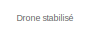
[diagram: root canvas - part 1/4, top center region]
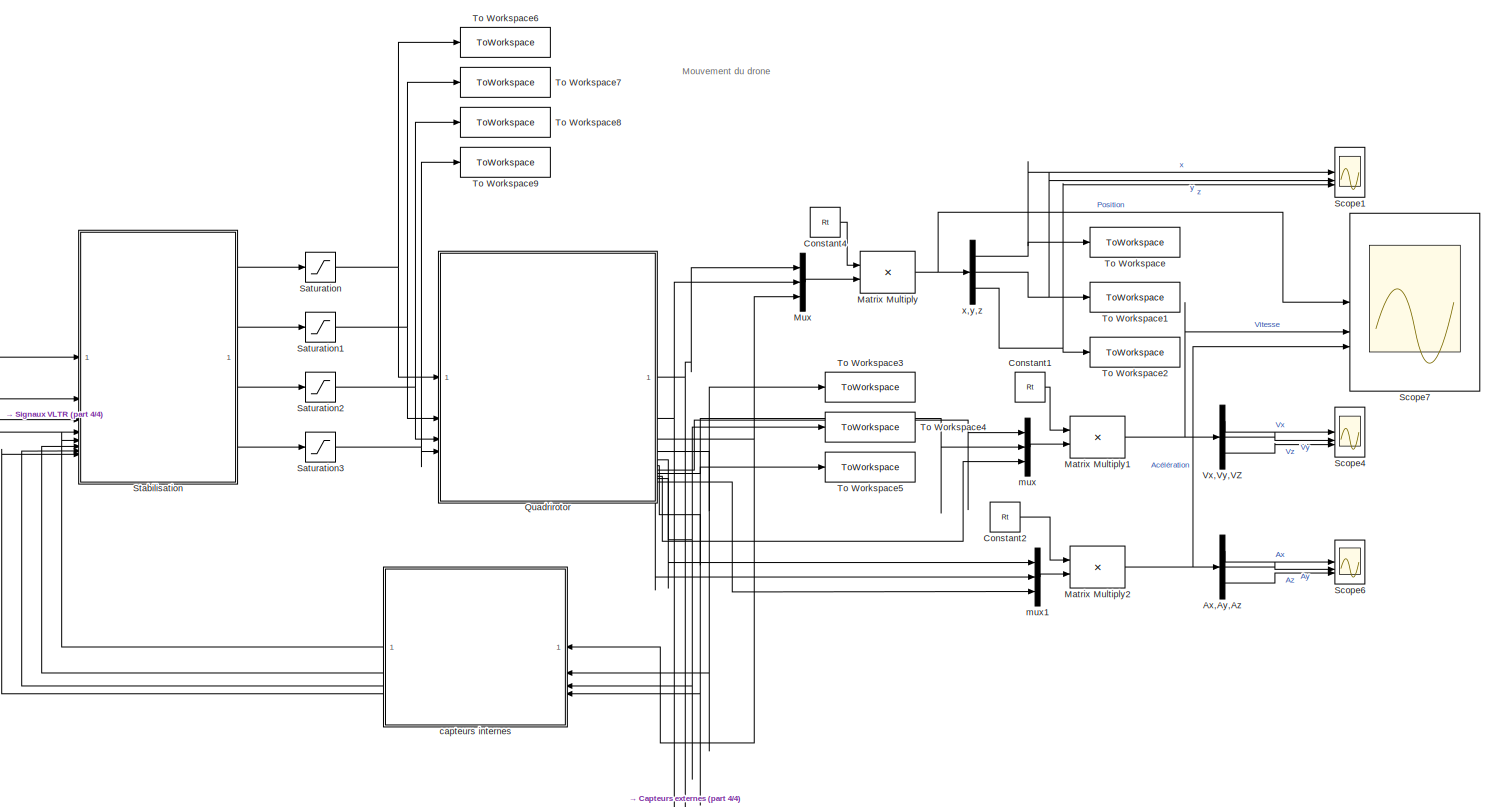
[diagram: root canvas - part 2/4, middle right region]
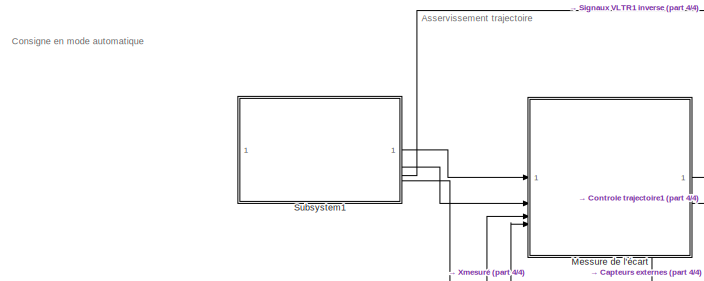
[diagram: root canvas - part 3/4, top left region]
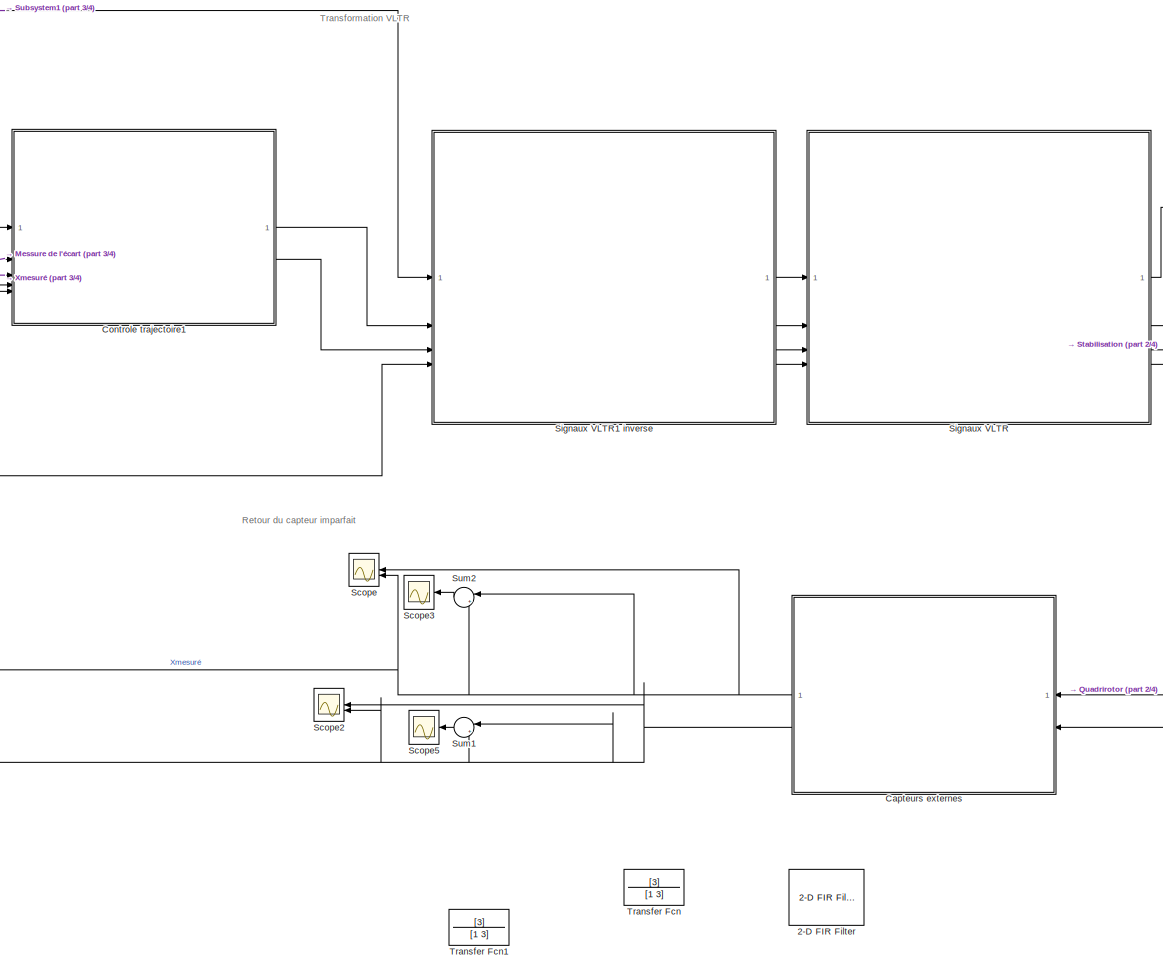
[diagram: root canvas - part 4/4, center side, full height]
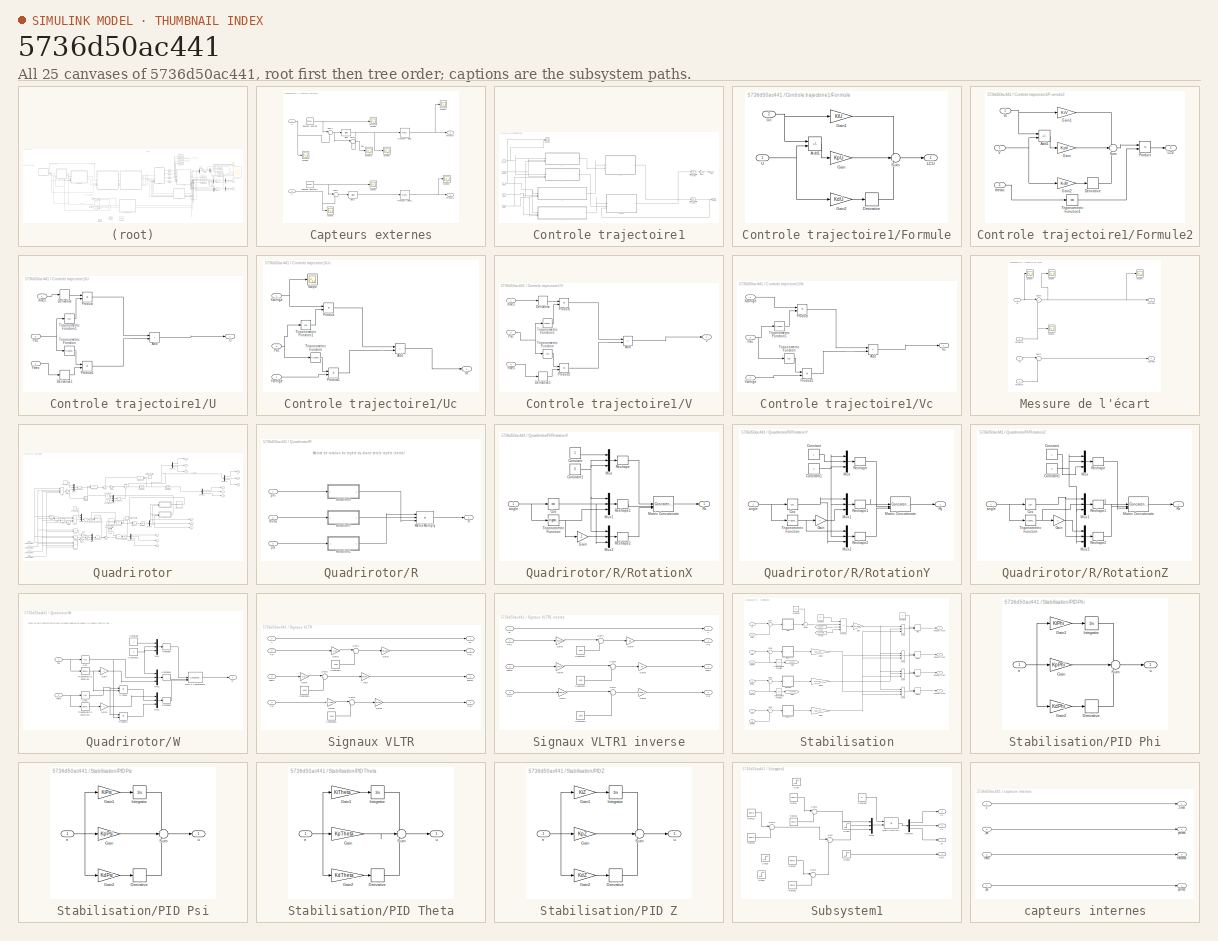
[diagram: thumbnail index - all 25 canvases of the model, root first then tree order]
MODEL slx_5736d50ac441
KIND model
CONFIG AbsTol = auto
CONFIG EnableMultiTasking = off
CONFIG FixedStep = Tech
CONFIG MaxStep = auto
CONFIG MinStep = auto
CONFIG RelTol = 1e-3
CONFIG SampleTimeConstraint = Unconstrained
CONFIG SolverName = ode4
CONFIG StartTime = 0.0
CONFIG StopTime = Tfinsim
BLOCK [Reference] 2-D FIR Filter  REF=visionfilter/2-D FIR Filter
  NameLocation = top
  SourceBlock = visionfilter/2-D FIR Filter
  SourceType = 2-D FIR Filter
BLOCK [Demux] Ax,Ay,Az
  Outputs = 3
BLOCK [SubSystem] Capteurs externes
  NameLocation = top
BLOCK [Bias] Capteurs externes/Bias
  Bias = Biais
  SaturateOnIntegerOverflow = off
BLOCK [Bias] Capteurs externes/Bias1
  Bias = Biais
  SaturateOnIntegerOverflow = off
BLOCK [RandomNumber] Capteurs externes/Random Number
  SampleTime = 0.07
  Variance = Bruit
BLOCK [RandomNumber] Capteurs externes/Random Number1
  SampleTime = 0.07
  Variance = Bruit
BLOCK [Scope] Capteurs externes/Scope1
  Floating = off
  NumInputPorts = 1
  ScopeSpecificationString = Simulink.scopes.TimeScopeBlockCfg('CurrentConfiguration', extmgr.ConfigurationSet(extmgr.Configuration('Core','General UI',true),extmgr.Configuration('Core','Source UI',true),extmgr.Configuration('Sources','WiredSimulink',true,'DataLoggingVariableName','ScopeData1'),extmgr.Configuration('Visuals','Time Domain',true,'SerializedDisplays',{struct('MinYLimReal','-1.14876','MaxYLimReal','1.25443','YLab...<+1502ch>
BLOCK [Scope] Capteurs externes/Scope10
  Floating = off
  NumInputPorts = 1
  ScopeSpecificationString = Simulink.scopes.TimeScopeBlockCfg('CurrentConfiguration', extmgr.ConfigurationSet(extmgr.Configuration('Core','General UI',true,'FigureColor',[1 1 1]),extmgr.Configuration('Core','Source UI',true),extmgr.Configuration('Sources','WiredSimulink',true,'DataLoggingVariableName','ScopeData2'),extmgr.Configuration('Visuals','Time Domain',true,'SerializedDisplays',{struct('MinYLimReal','-0.02400000000000...<+1709ch>
BLOCK [Scope] Capteurs externes/Scope2
  Floating = off
  NumInputPorts = 1
  ScopeSpecificationString = Simulink.scopes.TimeScopeBlockCfg('CurrentConfiguration', extmgr.ConfigurationSet(extmgr.Configuration('Core','General UI',true),extmgr.Configuration('Core','Source UI',true),extmgr.Configuration('Sources','WiredSimulink',true,'DataLoggingVariableName','ScopeData3'),extmgr.Configuration('Visuals','Time Domain',true,'SerializedDisplays',{struct('MinYLimReal','-0.12614','MaxYLimReal','1.13409','YLab...<+1545ch>
BLOCK [Scope] Capteurs externes/Scope3
  Floating = off
  NumInputPorts = 1
  ScopeSpecificationString = Simulink.scopes.TimeScopeBlockCfg('CurrentConfiguration', extmgr.ConfigurationSet(extmgr.Configuration('Core','General UI',true,'FigureColor',[1 1 1]),extmgr.Configuration('Core','Source UI',true),extmgr.Configuration('Sources','WiredSimulink',true,'DataLoggingVariableName','ScopeData4'),extmgr.Configuration('Visuals','Time Domain',true,'SerializedDisplays',{struct('MinYLimReal','-0.16246','MaxYLi...<+1840ch>
BLOCK [Scope] Capteurs externes/Scope4
  Floating = off
  NumInputPorts = 1
  ScopeSpecificationString = Simulink.scopes.TimeScopeBlockCfg('CurrentConfiguration', extmgr.ConfigurationSet(extmgr.Configuration('Core','General UI',true),extmgr.Configuration('Core','Source UI',true),extmgr.Configuration('Sources','WiredSimulink',true,'DataLoggingVariableName','ScopeData5'),extmgr.Configuration('Visuals','Time Domain',true,'SerializedDisplays',{struct('MinYLimReal','-0.13292','MaxYLimReal','1.19626','YLab...<+1545ch>
BLOCK [Scope] Capteurs externes/Scope5
  Floating = off
  NumInputPorts = 1
  ScopeSpecificationString = Simulink.scopes.TimeScopeBlockCfg('CurrentConfiguration', extmgr.ConfigurationSet(extmgr.Configuration('Core','General UI',true),extmgr.Configuration('Core','Source UI',true),extmgr.Configuration('Sources','WiredSimulink',true,'DataLoggingVariableName','ScopeData6'),extmgr.Configuration('Visuals','Time Domain',true,'SerializedDisplays',{struct('MinYLimReal','-26433.93958','MaxYLimReal','237901.780...<+1526ch>
BLOCK [Scope] Capteurs externes/Scope6
  Floating = off
  NumInputPorts = 1
  ScopeSpecificationString = Simulink.scopes.TimeScopeBlockCfg('CurrentConfiguration', extmgr.ConfigurationSet(extmgr.Configuration('Core','General UI',true),extmgr.Configuration('Core','Source UI',true),extmgr.Configuration('Sources','WiredSimulink',true,'DataLoggingVariableName','ScopeData7'),extmgr.Configuration('Visuals','Time Domain',true,'SerializedDisplays',{struct('MinYLimReal','-0.13792','MaxYLimReal','1.12136','YLab...<+1491ch>
BLOCK [Scope] Capteurs externes/Scope9
  Floating = off
  NumInputPorts = 1
  ScopeSpecificationString = Simulink.scopes.TimeScopeBlockCfg('CurrentConfiguration', extmgr.ConfigurationSet(extmgr.Configuration('Core','General UI',true),extmgr.Configuration('Core','Source UI',true),extmgr.Configuration('Sources','WiredSimulink',true,'DataLoggingVariableName','ScopeData8'),extmgr.Configuration('Visuals','Time Domain',true,'SerializedDisplays',{struct('MinYLimReal','-0.45863','MaxYLimReal','2.27318','YLab...<+1498ch>
BLOCK [Sum] Capteurs externes/Sum1
  Inputs = |++
BLOCK [Sum] Capteurs externes/Sum2
  Inputs = |++
BLOCK [Sum] Capteurs externes/Sum3
  Inputs = |+-
BLOCK [TransportDelay] Capteurs externes/Transport Delay
  DelayTime = retard
BLOCK [TransportDelay] Capteurs externes/Transport Delay1
  DelayTime = retard
BLOCK [Outport] Capteurs externes/Xmesuré
BLOCK [Outport] Capteurs externes/Ymesuré
  Port = 2
BLOCK [Inport] Capteurs externes/x
BLOCK [Inport] Capteurs externes/y
  Port = 2
BLOCK [Constant] Constant1
  Value = Rt
BLOCK [Constant] Constant2
  Value = Rt
BLOCK [Constant] Constant4
  Value = Rt
BLOCK [SubSystem] Controle trajectoire1
BLOCK [SubSystem] Controle trajectoire1/Formule
BLOCK [Sum] Controle trajectoire1/Formule/Add1
  IconShape = rectangular
  Inputs = +-
BLOCK [Derivative] Controle trajectoire1/Formule/Derivative
BLOCK [Gain] Controle trajectoire1/Formule/Gain
  Gain = KpU
BLOCK [Gain] Controle trajectoire1/Formule/Gain1
  Gain = KiU
BLOCK [Gain] Controle trajectoire1/Formule/Gain2
  Gain = KdU
BLOCK [Outport] Controle trajectoire1/Formule/LCU
BLOCK [Sum] Controle trajectoire1/Formule/Sum
  Inputs = +|+-
BLOCK [Inport] Controle trajectoire1/Formule/U
BLOCK [Inport] Controle trajectoire1/Formule/Uc
  Port = 2
BLOCK [SubSystem] Controle trajectoire1/Formule2
BLOCK [Sum] Controle trajectoire1/Formule2/Add1
  IconShape = rectangular
  Inputs = +-
BLOCK [Derivative] Controle trajectoire1/Formule2/Derivative
BLOCK [Gain] Controle trajectoire1/Formule2/Gain
  Gain = KpV
BLOCK [Gain] Controle trajectoire1/Formule2/Gain1
  Gain = KiV
BLOCK [Gain] Controle trajectoire1/Formule2/Gain2
  Gain = KdV
BLOCK [Outport] Controle trajectoire1/Formule2/LCV
BLOCK [Product] Controle trajectoire1/Formule2/Product
BLOCK [Sum] Controle trajectoire1/Formule2/Sum
  Inputs = +|+-
BLOCK [Trigonometry] Controle trajectoire1/Formule2/Trigonometric Function1
  Operator = cos
BLOCK [Inport] Controle trajectoire1/Formule2/V
BLOCK [Inport] Controle trajectoire1/Formule2/Vc
  Port = 2
BLOCK [Inport] Controle trajectoire1/Formule2/thetac
  Port = 3
BLOCK [Gain] Controle trajectoire1/Gain1
  Gain = -1
BLOCK [Outport] Controle trajectoire1/Phic
BLOCK [Inport] Controle trajectoire1/Psic
  Port = 5
BLOCK [Scope] Controle trajectoire1/Scope4
  Floating = off
  NumInputPorts = 2
  ScopeSpecificationString = Simulink.scopes.TimeScopeBlockCfg('CurrentConfiguration', extmgr.ConfigurationSet(extmgr.Configuration('Core','General UI',true),extmgr.Configuration('Core','Source UI',true),extmgr.Configuration('Sources','WiredSimulink',true,'DataLoggingVariableName','ScopeData3'),extmgr.Configuration('Visuals','Time Domain',true,'SerializedDisplays',{struct('MinYLimReal','-48.78354','MaxYLimReal','55.85461','YL...<+1553ch>
BLOCK [Outport] Controle trajectoire1/Thetac
  Port = 2
BLOCK [Trigonometry] Controle trajectoire1/Trigonometric Function
  Operator = atan
BLOCK [Trigonometry] Controle trajectoire1/Trigonometric Function1
  Operator = atan
BLOCK [SubSystem] Controle trajectoire1/U
BLOCK [Sum] Controle trajectoire1/U/Add
  IconShape = rectangular
BLOCK [Derivative] Controle trajectoire1/U/Derivative
BLOCK [Derivative] Controle trajectoire1/U/Derivative1
BLOCK [Product] Controle trajectoire1/U/Product
BLOCK [Product] Controle trajectoire1/U/Product1
BLOCK [Inport] Controle trajectoire1/U/Psic
  Port = 3
BLOCK [Trigonometry] Controle trajectoire1/U/Trigonometric Function
BLOCK [Trigonometry] Controle trajectoire1/U/Trigonometric Function1
  Operator = cos
BLOCK [Outport] Controle trajectoire1/U/U
BLOCK [Inport] Controle trajectoire1/U/Xmes
BLOCK [Inport] Controle trajectoire1/U/Ymes
  Port = 2
BLOCK [SubSystem] Controle trajectoire1/Uc
BLOCK [Sum] Controle trajectoire1/Uc/Add
  IconShape = rectangular
BLOCK [Product] Controle trajectoire1/Uc/Product
BLOCK [Product] Controle trajectoire1/Uc/Product1
BLOCK [Inport] Controle trajectoire1/Uc/Psic
  Port = 3
BLOCK [Scope] Controle trajectoire1/Uc/Scope
  Floating = off
  NumInputPorts = 1
  ScopeSpecificationString = Simulink.scopes.TimeScopeBlockCfg('CurrentConfiguration', extmgr.ConfigurationSet(extmgr.Configuration('Core','General UI',true),extmgr.Configuration('Core','Source UI',true),extmgr.Configuration('Sources','WiredSimulink',true,'DataLoggingVariableName','ScopeData1'),extmgr.Configuration('Visuals','Time Domain',true,'SerializedDisplays',{struct('MinYLimReal','-0.14566','MaxYLimReal','1.13217','YLab...<+1498ch>
BLOCK [Trigonometry] Controle trajectoire1/Uc/Trigonometric Function
BLOCK [Trigonometry] Controle trajectoire1/Uc/Trigonometric Function1
  Operator = cos
BLOCK [Outport] Controle trajectoire1/Uc/Uc
BLOCK [Inport] Controle trajectoire1/Uc/Xcorrigé
BLOCK [Inport] Controle trajectoire1/Uc/Ycorrigé
  Port = 2
BLOCK [SubSystem] Controle trajectoire1/V
BLOCK [Sum] Controle trajectoire1/V/Add
  IconShape = rectangular
  Inputs = -+
BLOCK [Derivative] Controle trajectoire1/V/Derivative
BLOCK [Derivative] Controle trajectoire1/V/Derivative1
BLOCK [Product] Controle trajectoire1/V/Product
BLOCK [Product] Controle trajectoire1/V/Product1
BLOCK [Inport] Controle trajectoire1/V/Psic
  Port = 3
BLOCK [Trigonometry] Controle trajectoire1/V/Trigonometric Function
  Operator = cos
BLOCK [Trigonometry] Controle trajectoire1/V/Trigonometric Function1
BLOCK [Outport] Controle trajectoire1/V/V
BLOCK [Inport] Controle trajectoire1/V/Xmes
BLOCK [Inport] Controle trajectoire1/V/Ymes
  Port = 2
BLOCK [SubSystem] Controle trajectoire1/Vc
BLOCK [Sum] Controle trajectoire1/Vc/Add
  IconShape = rectangular
  Inputs = -+
BLOCK [Product] Controle trajectoire1/Vc/Product
BLOCK [Product] Controle trajectoire1/Vc/Product1
BLOCK [Inport] Controle trajectoire1/Vc/Psic
  Port = 3
BLOCK [Trigonometry] Controle trajectoire1/Vc/Trigonometric Function
  Operator = cos
BLOCK [Trigonometry] Controle trajectoire1/Vc/Trigonometric Function1
BLOCK [Outport] Controle trajectoire1/Vc/Vc
BLOCK [Inport] Controle trajectoire1/Vc/Xcorrigé
BLOCK [Inport] Controle trajectoire1/Vc/Ycorrigé
  Port = 2
BLOCK [Inport] Controle trajectoire1/Xecart
BLOCK [Inport] Controle trajectoire1/Xmes
  Port = 3
BLOCK [Inport] Controle trajectoire1/Yecart
  Port = 2
BLOCK [Inport] Controle trajectoire1/Ymes
  Port = 4
BLOCK [Product] Matrix Multiply
  Multiplication = Matrix(*)
BLOCK [Product] Matrix Multiply1
  Multiplication = Matrix(*)
BLOCK [Product] Matrix Multiply2
  Multiplication = Matrix(*)
BLOCK [SubSystem] Messure de l'écart
BLOCK [Scope] Messure de l'écart/Scope
  Floating = off
  NumInputPorts = 1
  ScopeSpecificationString = Simulink.scopes.TimeScopeBlockCfg('CurrentConfiguration', extmgr.ConfigurationSet(extmgr.Configuration('Core','General UI',true),extmgr.Configuration('Core','Source UI',true),extmgr.Configuration('Sources','WiredSimulink',true,'DataLoggingVariableName','ScopeData1'),extmgr.Configuration('Visuals','Time Domain',true,'SerializedDisplays',{struct('MinYLimReal','-264.52509','MaxYLimReal','51.03557','Y...<+1506ch>
BLOCK [Scope] Messure de l'écart/Scope1
  Floating = off
  NumInputPorts = 1
  ScopeSpecificationString = Simulink.scopes.TimeScopeBlockCfg('CurrentConfiguration', extmgr.ConfigurationSet(extmgr.Configuration('Core','General UI',true),extmgr.Configuration('Core','Source UI',true),extmgr.Configuration('Sources','WiredSimulink',true,'DataLoggingVariableName','ScopeData2'),extmgr.Configuration('Visuals','Time Domain',true,'SerializedDisplays',{struct('MinYLimReal','-0.29025','MaxYLimReal','2.61229','YLab...<+1493ch>
BLOCK [Scope] Messure de l'écart/Scope2
  Floating = off
  NumInputPorts = 1
  ScopeSpecificationString = Simulink.scopes.TimeScopeBlockCfg('CurrentConfiguration', extmgr.ConfigurationSet(extmgr.Configuration('Core','General UI',true),extmgr.Configuration('Core','Source UI',true),extmgr.Configuration('Sources','WiredSimulink',true,'DataLoggingVariableName','ScopeData3'),extmgr.Configuration('Visuals','Time Domain',true,'SerializedDisplays',{struct('MinYLimReal','-0.125','MaxYLimReal','1.125','YLabelRe...<+1480ch>
BLOCK [Scope] Messure de l'écart/Scope3
  Floating = off
  NumInputPorts = 1
  ScopeSpecificationString = Simulink.scopes.TimeScopeBlockCfg('CurrentConfiguration', extmgr.ConfigurationSet(extmgr.Configuration('Core','General UI',true),extmgr.Configuration('Core','Source UI',true),extmgr.Configuration('Sources','WiredSimulink',true,'DataLoggingVariableName','ScopeData4'),extmgr.Configuration('Visuals','Time Domain',true,'SerializedDisplays',{struct('MinYLimReal','-50.03557','MaxYLimReal','265.52509','Y...<+1507ch>
BLOCK [Sum] Messure de l'écart/Sum4
  Inputs = |+-
BLOCK [Sum] Messure de l'écart/Sum5
  Inputs = |+-
BLOCK [Inport] Messure de l'écart/Xc
BLOCK [Outport] Messure de l'écart/Xcorrigé
BLOCK [Inport] Messure de l'écart/Xmesuré
  Port = 3
BLOCK [Inport] Messure de l'écart/Yc
  Port = 2
BLOCK [Outport] Messure de l'écart/Ycorrigé
  Port = 2
BLOCK [Inport] Messure de l'écart/Ymesuré
  Port = 4
BLOCK [Mux] Mux
  DisplayOption = bar
  Inputs = 3
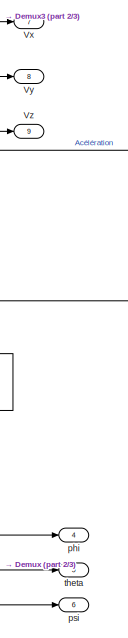
[diagram: Quadrirotor - part 1/3, middle right region]
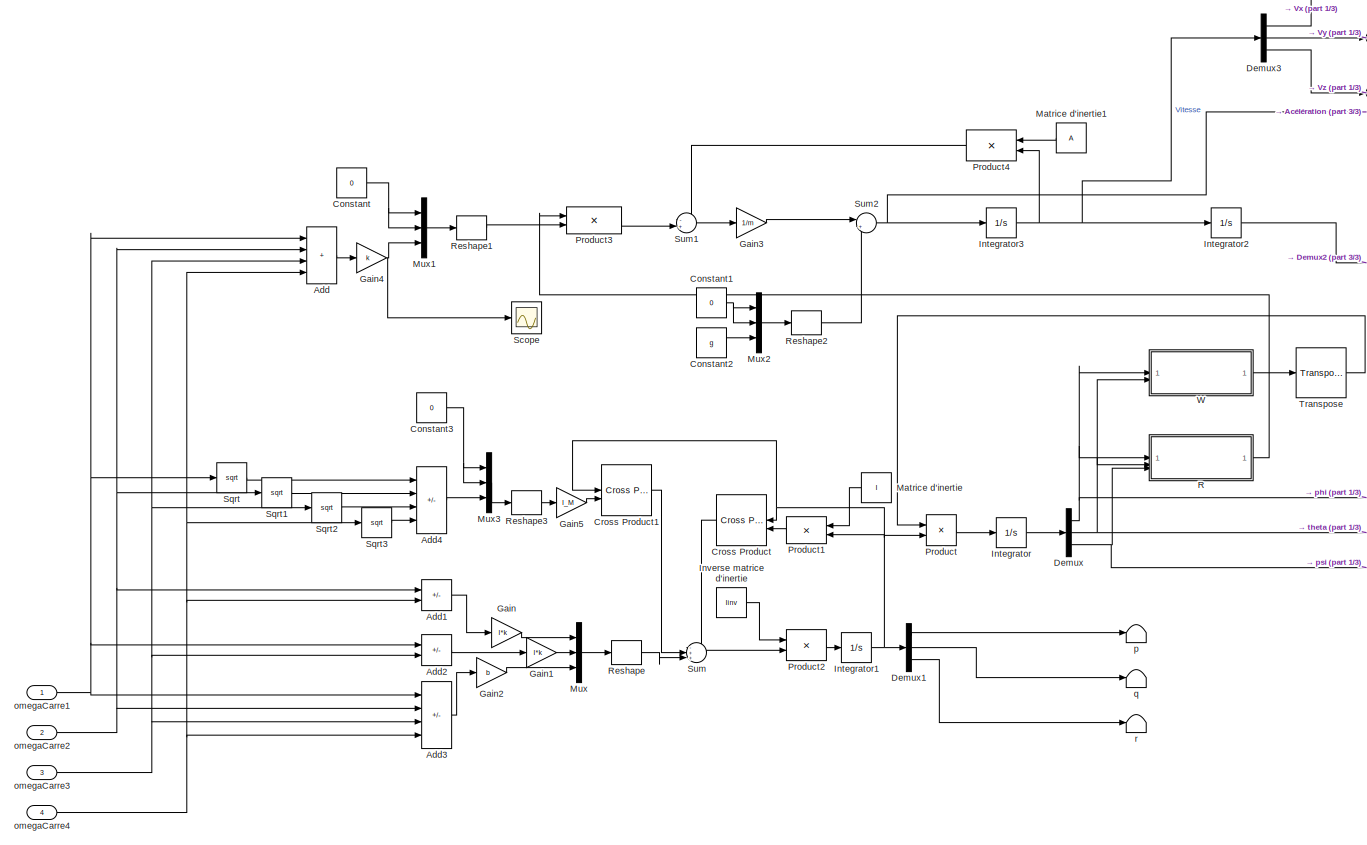
[diagram: Quadrirotor - part 2/3, most of the canvas]
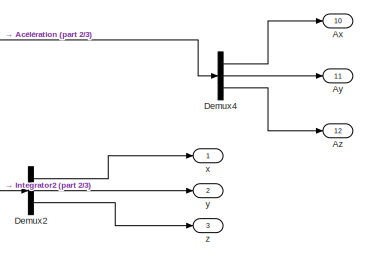
[diagram: Quadrirotor - part 3/3, top right region]
BLOCK [SubSystem] Quadrirotor
BLOCK [Sum] Quadrirotor/Add
  IconShape = rectangular
  Inputs = ++++
BLOCK [Sum] Quadrirotor/Add1
  IconShape = rectangular
  Inputs = -+
BLOCK [Sum] Quadrirotor/Add2
  IconShape = rectangular
  Inputs = -+
BLOCK [Sum] Quadrirotor/Add3
  IconShape = rectangular
  Inputs = -+-+
BLOCK [Sum] Quadrirotor/Add4
  IconShape = rectangular
  Inputs = +-+-
BLOCK [Outport] Quadrirotor/Ax
  Port = 10
BLOCK [Outport] Quadrirotor/Ay
  Port = 11
BLOCK [Outport] Quadrirotor/Az
  Port = 12
BLOCK [Constant] Quadrirotor/Constant
  Value = 0
BLOCK [Constant] Quadrirotor/Constant1
  Value = 0
BLOCK [Constant] Quadrirotor/Constant2
  Value = g
BLOCK [Constant] Quadrirotor/Constant3
  Value = 0
BLOCK [Reference] Quadrirotor/Cross Product  REF=matrix_library/Cross Product
  LibrarySourceBlock = simulink/Matrix\nOperations/Cross Product
  NameLocation = top
  SourceBlock = matrix_library/Cross Product
  SourceType = CrossProduct
BLOCK [Reference] Quadrirotor/Cross Product1  REF=matrix_library/Cross Product
  LibrarySourceBlock = simulink/Matrix\nOperations/Cross Product
  SourceBlock = matrix_library/Cross Product
  SourceType = CrossProduct
BLOCK [Demux] Quadrirotor/Demux
  Outputs = 3
BLOCK [Demux] Quadrirotor/Demux1
  Outputs = 3
BLOCK [Demux] Quadrirotor/Demux2
  Outputs = 3
BLOCK [Demux] Quadrirotor/Demux3
  Outputs = 3
BLOCK [Demux] Quadrirotor/Demux4
  Outputs = 3
BLOCK [Gain] Quadrirotor/Gain
  Gain = l*k
BLOCK [Gain] Quadrirotor/Gain1
  Gain = l*k
BLOCK [Gain] Quadrirotor/Gain2
  Gain = b
BLOCK [Gain] Quadrirotor/Gain3
  Gain = 1/m
BLOCK [Gain] Quadrirotor/Gain4
  Gain = k
BLOCK [Gain] Quadrirotor/Gain5
  Gain = I_M
BLOCK [Integrator] Quadrirotor/Integrator
BLOCK [Integrator] Quadrirotor/Integrator1
BLOCK [Integrator] Quadrirotor/Integrator2
BLOCK [Integrator] Quadrirotor/Integrator3
BLOCK [Constant] Quadrirotor/Inverse matrice d'inertie
  Value = Iinv
BLOCK [Constant] Quadrirotor/Matrice d'inertie
  NameLocation = top
  Value = I
BLOCK [Constant] Quadrirotor/Matrice d'inertie1
  NameLocation = top
  Value = A
BLOCK [Mux] Quadrirotor/Mux
  DisplayOption = bar
  Inputs = 3
BLOCK [Mux] Quadrirotor/Mux1
  DisplayOption = bar
  Inputs = 3
BLOCK [Mux] Quadrirotor/Mux2
  DisplayOption = bar
  Inputs = 3
BLOCK [Mux] Quadrirotor/Mux3
  DisplayOption = bar
  Inputs = 3
BLOCK [Product] Quadrirotor/Product
  Multiplication = Matrix(*)
BLOCK [Product] Quadrirotor/Product1
  Multiplication = Matrix(*)
  NameLocation = top
BLOCK [Product] Quadrirotor/Product2
  Multiplication = Matrix(*)
BLOCK [Product] Quadrirotor/Product3
  Multiplication = Matrix(*)
BLOCK [Product] Quadrirotor/Product4
  Multiplication = Matrix(*)
  NameLocation = top
BLOCK [SubSystem] Quadrirotor/R
BLOCK [Product] Quadrirotor/R/Matrix Multiply
  Inputs = ***
  Multiplication = Matrix(*)
BLOCK [Outport] Quadrirotor/R/R
BLOCK [SubSystem] Quadrirotor/R/RotationX
BLOCK [Constant] Quadrirotor/R/RotationX/Constant
BLOCK [Constant] Quadrirotor/R/RotationX/Constant1
  Value = 0
BLOCK [Trigonometry] Quadrirotor/R/RotationX/Cos
  Operator = cos
BLOCK [Gain] Quadrirotor/R/RotationX/Gain
  Gain = -1
BLOCK [Concatenate] Quadrirotor/R/RotationX/Matrix Concatenate
  ConcatenateDimension = 2
  Mode = Multidimensional array
  NumInputs = 3
BLOCK [Mux] Quadrirotor/R/RotationX/Mux
  DisplayOption = bar
  Inputs = 3
BLOCK [Mux] Quadrirotor/R/RotationX/Mux1
  DisplayOption = bar
  Inputs = 3
BLOCK [Mux] Quadrirotor/R/RotationX/Mux2
  DisplayOption = bar
  Inputs = 3
BLOCK [Reshape] Quadrirotor/R/RotationX/Reshape
  OutputDimensionality = Column vector (2-D)
BLOCK [Reshape] Quadrirotor/R/RotationX/Reshape1
  OutputDimensionality = Column vector (2-D)
BLOCK [Reshape] Quadrirotor/R/RotationX/Reshape2
  OutputDimensionality = Column vector (2-D)
BLOCK [Outport] Quadrirotor/R/RotationX/Rx
BLOCK [Trigonometry] Quadrirotor/R/RotationX/Trigonometric Function
BLOCK [Inport] Quadrirotor/R/RotationX/angle
BLOCK [SubSystem] Quadrirotor/R/RotationY
BLOCK [Constant] Quadrirotor/R/RotationY/Constant
BLOCK [Constant] Quadrirotor/R/RotationY/Constant1
  Value = 0
BLOCK [Trigonometry] Quadrirotor/R/RotationY/Cos
  Operator = cos
BLOCK [Gain] Quadrirotor/R/RotationY/Gain
  Gain = -1
BLOCK [Concatenate] Quadrirotor/R/RotationY/Matrix Concatenate
  ConcatenateDimension = 2
  Mode = Multidimensional array
  NumInputs = 3
BLOCK [Mux] Quadrirotor/R/RotationY/Mux
  DisplayOption = bar
  Inputs = 3
BLOCK [Mux] Quadrirotor/R/RotationY/Mux1
  DisplayOption = bar
  Inputs = 3
BLOCK [Mux] Quadrirotor/R/RotationY/Mux2
  DisplayOption = bar
  Inputs = 3
BLOCK [Reshape] Quadrirotor/R/RotationY/Reshape
  OutputDimensionality = Column vector (2-D)
BLOCK [Reshape] Quadrirotor/R/RotationY/Reshape1
  OutputDimensionality = Column vector (2-D)
BLOCK [Reshape] Quadrirotor/R/RotationY/Reshape2
  OutputDimensionality = Column vector (2-D)
BLOCK [Outport] Quadrirotor/R/RotationY/Ry
BLOCK [Trigonometry] Quadrirotor/R/RotationY/Trigonometric Function
BLOCK [Inport] Quadrirotor/R/RotationY/angle
BLOCK [SubSystem] Quadrirotor/R/RotationZ
BLOCK [Constant] Quadrirotor/R/RotationZ/Constant
BLOCK [Constant] Quadrirotor/R/RotationZ/Constant1
  Value = 0
BLOCK [Trigonometry] Quadrirotor/R/RotationZ/Cos
  Operator = cos
BLOCK [Gain] Quadrirotor/R/RotationZ/Gain
  Gain = -1
BLOCK [Concatenate] Quadrirotor/R/RotationZ/Matrix Concatenate
  ConcatenateDimension = 2
  Mode = Multidimensional array
  NumInputs = 3
BLOCK [Mux] Quadrirotor/R/RotationZ/Mux
  DisplayOption = bar
  Inputs = 3
BLOCK [Mux] Quadrirotor/R/RotationZ/Mux1
  DisplayOption = bar
  Inputs = 3
BLOCK [Mux] Quadrirotor/R/RotationZ/Mux2
  DisplayOption = bar
  Inputs = 3
BLOCK [Reshape] Quadrirotor/R/RotationZ/Reshape
  OutputDimensionality = Column vector (2-D)
BLOCK [Reshape] Quadrirotor/R/RotationZ/Reshape1
  OutputDimensionality = Column vector (2-D)
BLOCK [Reshape] Quadrirotor/R/RotationZ/Reshape2
  OutputDimensionality = Column vector (2-D)
BLOCK [Outport] Quadrirotor/R/RotationZ/Rz
BLOCK [Trigonometry] Quadrirotor/R/RotationZ/Trigonometric Function
BLOCK [Inport] Quadrirotor/R/RotationZ/angle
BLOCK [Inport] Quadrirotor/R/phi
BLOCK [Inport] Quadrirotor/R/psi
  Port = 3
BLOCK [Inport] Quadrirotor/R/theta
  Port = 2
BLOCK [Reshape] Quadrirotor/Reshape
  OutputDimensionality = Column vector (2-D)
BLOCK [Reshape] Quadrirotor/Reshape1
  OutputDimensionality = Column vector (2-D)
BLOCK [Reshape] Quadrirotor/Reshape2
  OutputDimensionality = Column vector (2-D)
BLOCK [Reshape] Quadrirotor/Reshape3
  OutputDimensionality = Column vector (2-D)
BLOCK [Scope] Quadrirotor/Scope
  Floating = off
  NumInputPorts = 1
  ScopeSpecificationString = Simulink.scopes.TimeScopeBlockCfg('CurrentConfiguration', extmgr.ConfigurationSet(extmgr.Configuration('Core','General UI',true),extmgr.Configuration('Core','Source UI',true),extmgr.Configuration('Sources','WiredSimulink',true,'DataLoggingVariableName','ScopeData1'),extmgr.Configuration('Visuals','Time Domain',true,'SerializedDisplays',{struct('MinYLimReal','14.715','MaxYLimReal','24.525','YLabelR...<+1488ch>
BLOCK [Sqrt] Quadrirotor/Sqrt
BLOCK [Sqrt] Quadrirotor/Sqrt1
BLOCK [Sqrt] Quadrirotor/Sqrt2
BLOCK [Sqrt] Quadrirotor/Sqrt3
BLOCK [Sum] Quadrirotor/Sum
  Inputs = -++|
BLOCK [Sum] Quadrirotor/Sum1
  Inputs = -+|
BLOCK [Sum] Quadrirotor/Sum2
  Inputs = |+-
BLOCK [Reference] Quadrirotor/Transpose  REF=matrix_library/Transpose
  LibrarySourceBlock = simulink/Matrix\nOperations/Transpose
  SourceBlock = matrix_library/Transpose
  SourceType = Transpose
BLOCK [Outport] Quadrirotor/Vx
  Port = 7
BLOCK [Outport] Quadrirotor/Vy
  Port = 8
BLOCK [Outport] Quadrirotor/Vz
  Port = 9
BLOCK [SubSystem] Quadrirotor/W
BLOCK [Constant] Quadrirotor/W/Constant
BLOCK [Constant] Quadrirotor/W/Constant1
  Value = 0
BLOCK [Trigonometry] Quadrirotor/W/Cos
  Operator = cos
BLOCK [Trigonometry] Quadrirotor/W/Cos1
  Operator = cos
BLOCK [Gain] Quadrirotor/W/Gain
  Gain = -1
BLOCK [Gain] Quadrirotor/W/Gain1
  Gain = -1
BLOCK [Concatenate] Quadrirotor/W/Matrix Concatenate
  ConcatenateDimension = 2
  Mode = Multidimensional array
  NumInputs = 3
BLOCK [Mux] Quadrirotor/W/Mux
  DisplayOption = bar
  Inputs = 3
BLOCK [Mux] Quadrirotor/W/Mux1
  DisplayOption = bar
  Inputs = 3
BLOCK [Mux] Quadrirotor/W/Mux2
  DisplayOption = bar
  Inputs = 3
BLOCK [Product] Quadrirotor/W/Product
BLOCK [Product] Quadrirotor/W/Product1
BLOCK [Reshape] Quadrirotor/W/Reshape
  OutputDimensionality = Column vector (2-D)
BLOCK [Reshape] Quadrirotor/W/Reshape1
  OutputDimensionality = Column vector (2-D)
BLOCK [Reshape] Quadrirotor/W/Reshape2
  OutputDimensionality = Column vector (2-D)
BLOCK [Trigonometry] Quadrirotor/W/Trigonometric Function
BLOCK [Trigonometry] Quadrirotor/W/Trigonometric Function1
BLOCK [Outport] Quadrirotor/W/W
BLOCK [Inport] Quadrirotor/W/phi
BLOCK [Inport] Quadrirotor/W/theta
  Port = 2
BLOCK [Inport] Quadrirotor/omegaCarre1
  PortDimensions = 1
BLOCK [Inport] Quadrirotor/omegaCarre2
  Port = 2
  PortDimensions = 1
BLOCK [Inport] Quadrirotor/omegaCarre3
  Port = 3
  PortDimensions = 1
BLOCK [Inport] Quadrirotor/omegaCarre4
  Port = 4
  PortDimensions = 1
BLOCK [Terminator] Quadrirotor/p
BLOCK [Outport] Quadrirotor/phi
  Port = 4
BLOCK [Outport] Quadrirotor/psi
  Port = 6
BLOCK [Terminator] Quadrirotor/q
BLOCK [Terminator] Quadrirotor/r
BLOCK [Outport] Quadrirotor/theta
  Port = 5
BLOCK [Outport] Quadrirotor/x
BLOCK [Outport] Quadrirotor/y
  Port = 2
BLOCK [Outport] Quadrirotor/z
  Port = 3
BLOCK [Saturate] Saturation
  LowerLimit = -(10464*2*pi/60)^2
  UpperLimit = (10464*(2*pi)/60)^2
BLOCK [Saturate] Saturation1
  LowerLimit = -(10464*2*pi/60)^2
  UpperLimit = (10464*(2*pi)/60)^2
BLOCK [Saturate] Saturation2
  LowerLimit = -(10464*2*pi/60)^2
  UpperLimit = (10464*(2*pi)/60)^2
BLOCK [Saturate] Saturation3
  LowerLimit = -(10464*2*pi/60)^2
  UpperLimit = (10464*(2*pi)/60)^2
BLOCK [Scope] Scope
  Floating = off
  NameLocation = top
  NumInputPorts = 2
  ScopeSpecificationString = Simulink.scopes.TimeScopeBlockCfg('CurrentConfiguration', extmgr.ConfigurationSet(extmgr.Configuration('Core','General UI',true,'FigureColor',[1 1 1]),extmgr.Configuration('Core','Source UI',true),extmgr.Configuration('Sources','WiredSimulink',true,'DataLoggingVariableName','ScopeData1'),extmgr.Configuration('Visuals','Time Domain',true,'SerializedDisplays',{struct('MinYLimReal','-1.48694','MaxYLi...<+1515ch>
BLOCK [Scope] Scope1
  Floating = off
  NumInputPorts = 3
  ScopeSpecificationString = Simulink.scopes.TimeScopeBlockCfg('CurrentConfiguration', extmgr.ConfigurationSet(extmgr.Configuration('Core','General UI',true,'FigureColor',[1 1 1]),extmgr.Configuration('Core','Source UI',true),extmgr.Configuration('Sources','WiredSimulink',true,'DataLoggingVariableName','ScopeData1'),extmgr.Configuration('Visuals','Time Domain',true,'SerializedDisplays',{struct('MinYLimReal','-3.09899','MaxYLi...<+1570ch>
BLOCK [Scope] Scope2
  Floating = off
  NameLocation = top
  NumInputPorts = 2
  ScopeSpecificationString = Simulink.scopes.TimeScopeBlockCfg('CurrentConfiguration', extmgr.ConfigurationSet(extmgr.Configuration('Core','General UI',true),extmgr.Configuration('Core','Source UI',true),extmgr.Configuration('Sources','WiredSimulink',true,'DataLoggingVariableName','ScopeData3'),extmgr.Configuration('Visuals','Time Domain',true,'SerializedDisplays',{struct('MinYLimReal','-4.08982','MaxYLimReal','0.46659','YLab...<+1550ch>
BLOCK [Scope] Scope3
  Floating = off
  NameLocation = top
  NumInputPorts = 1
  ScopeSpecificationString = Simulink.scopes.TimeScopeBlockCfg('CurrentConfiguration', extmgr.ConfigurationSet(extmgr.Configuration('Core','General UI',true,'FigureColor',[1 1 1]),extmgr.Configuration('Core','Source UI',true),extmgr.Configuration('Sources','WiredSimulink',true,'DataLoggingVariableName','ScopeData5'),extmgr.Configuration('Visuals','Time Domain',true,'SerializedDisplays',{struct('MinYLimReal','-1.27477','MaxYLi...<+1663ch>
BLOCK [Scope] Scope4
  Floating = off
  NumInputPorts = 3
  ScopeSpecificationString = Simulink.scopes.TimeScopeBlockCfg('CurrentConfiguration', extmgr.ConfigurationSet(extmgr.Configuration('Core','General UI',true,'FigureColor',[1 1 1]),extmgr.Configuration('Core','Source UI',true),extmgr.Configuration('Sources','WiredSimulink',true,'DataLoggingVariableName','ScopeData2'),extmgr.Configuration('Visuals','Time Domain',true,'SerializedDisplays',{struct('MinYLimReal','-2.54075','MaxYLi...<+1502ch>
BLOCK [Scope] Scope5
  Floating = off
  NameLocation = top
  NumInputPorts = 1
  ScopeSpecificationString = Simulink.scopes.TimeScopeBlockCfg('CurrentConfiguration', extmgr.ConfigurationSet(extmgr.Configuration('Core','General UI',true),extmgr.Configuration('Core','Source UI',true),extmgr.Configuration('Sources','WiredSimulink',true,'DataLoggingVariableName','ScopeData6'),extmgr.Configuration('Visuals','Time Domain',true,'SerializedDisplays',{struct('MinYLimReal','-0.3159','MaxYLimReal','2.56137','YLabe...<+1547ch>
BLOCK [Scope] Scope6
  Floating = off
  NumInputPorts = 3
  ScopeSpecificationString = Simulink.scopes.TimeScopeBlockCfg('CurrentConfiguration', extmgr.ConfigurationSet(extmgr.Configuration('Core','General UI',true,'FigureColor',[1 1 1]),extmgr.Configuration('Core','Source UI',true),extmgr.Configuration('Sources','WiredSimulink',true,'DataLoggingVariableName','ScopeData3'),extmgr.Configuration('Visuals','Time Domain',true,'SerializedDisplays',{struct('MinYLimReal','-52.39191','MaxYL...<+1514ch>
BLOCK [Scope] Scope7
  Floating = off
  NumInputPorts = 3
  ScopeSpecificationString = Simulink.scopes.TimeScopeBlockCfg('CurrentConfiguration', extmgr.ConfigurationSet(extmgr.Configuration('Core','General UI',true,'FigureColor',[1 1 1]),extmgr.Configuration('Core','Source UI',true),extmgr.Configuration('Sources','WiredSimulink',true,'DataLoggingVariableName','ScopeData4'),extmgr.Configuration('Visuals','Time Domain',true,'SerializedDisplays',{struct('MinYLimReal','-1.92821','MaxYLi...<+3022ch>
BLOCK [SubSystem] Signaux VLTR
BLOCK [Constant] Signaux VLTR/Constant3
  Value = 1500
BLOCK [Constant] Signaux VLTR/Constant4
  Value = 1500
BLOCK [Constant] Signaux VLTR/Constant5
  Value = 1500
BLOCK [Gain] Signaux VLTR/Gain
  Gain = pi/180
BLOCK [Gain] Signaux VLTR/Gain1
  Gain = pi/180
BLOCK [Gain] Signaux VLTR/Gain3
  Gain = 1/50
BLOCK [Gain] Signaux VLTR/Gain4
  Gain = 1/50
BLOCK [Gain] Signaux VLTR/Gain5
  Gain = 1/(1000/405)
BLOCK [Gain] Signaux VLTR/Gain6
  Gain = pi/180
BLOCK [Inport] Signaux VLTR/Phi
  Port = 2
BLOCK [Outport] Signaux VLTR/Phic
  Port = 2
BLOCK [Inport] Signaux VLTR/Psi
  Port = 4
BLOCK [Outport] Signaux VLTR/Psic
  Port = 4
BLOCK [Sum] Signaux VLTR/Sum1
  Inputs = |+-
BLOCK [Sum] Signaux VLTR/Sum2
  Inputs = |+-
BLOCK [Sum] Signaux VLTR/Sum3
  Inputs = |+-
BLOCK [Inport] Signaux VLTR/Theta
  Port = 3
BLOCK [Outport] Signaux VLTR/Thetac
  Port = 3
BLOCK [Inport] Signaux VLTR/V
BLOCK [Outport] Signaux VLTR/Zc
BLOCK [SubSystem] Signaux VLTR1 inverse
BLOCK [Constant] Signaux VLTR1 inverse/Constant1
  Value = 1500
BLOCK [Constant] Signaux VLTR1 inverse/Constant2
  Value = 1500
BLOCK [Constant] Signaux VLTR1 inverse/Constant3
  Value = 1500
BLOCK [Gain] Signaux VLTR1 inverse/Gain1
  Gain = 180/pi
BLOCK [Gain] Signaux VLTR1 inverse/Gain2
  Gain = 180/pi
BLOCK [Gain] Signaux VLTR1 inverse/Gain3
  Gain = (1000/405)
BLOCK [Gain] Signaux VLTR1 inverse/Gain7
  Gain = 50
BLOCK [Gain] Signaux VLTR1 inverse/Gain8
  Gain = 180/pi
BLOCK [Gain] Signaux VLTR1 inverse/Gain9
  Gain = 50
BLOCK [Outport] Signaux VLTR1 inverse/Phi
  Port = 2
BLOCK [Inport] Signaux VLTR1 inverse/Phi1
  Port = 2
BLOCK [Outport] Signaux VLTR1 inverse/Psi
  Port = 4
BLOCK [Inport] Signaux VLTR1 inverse/Psi1
  Port = 4
BLOCK [Sum] Signaux VLTR1 inverse/Sum1
  Inputs = |++
BLOCK [Sum] Signaux VLTR1 inverse/Sum4
  Inputs = |++
BLOCK [Sum] Signaux VLTR1 inverse/Sum5
  Inputs = |++
BLOCK [Outport] Signaux VLTR1 inverse/Theta
  Port = 3
BLOCK [Inport] Signaux VLTR1 inverse/Theta1
  Port = 3
BLOCK [Outport] Signaux VLTR1 inverse/V
BLOCK [Inport] Signaux VLTR1 inverse/Zc
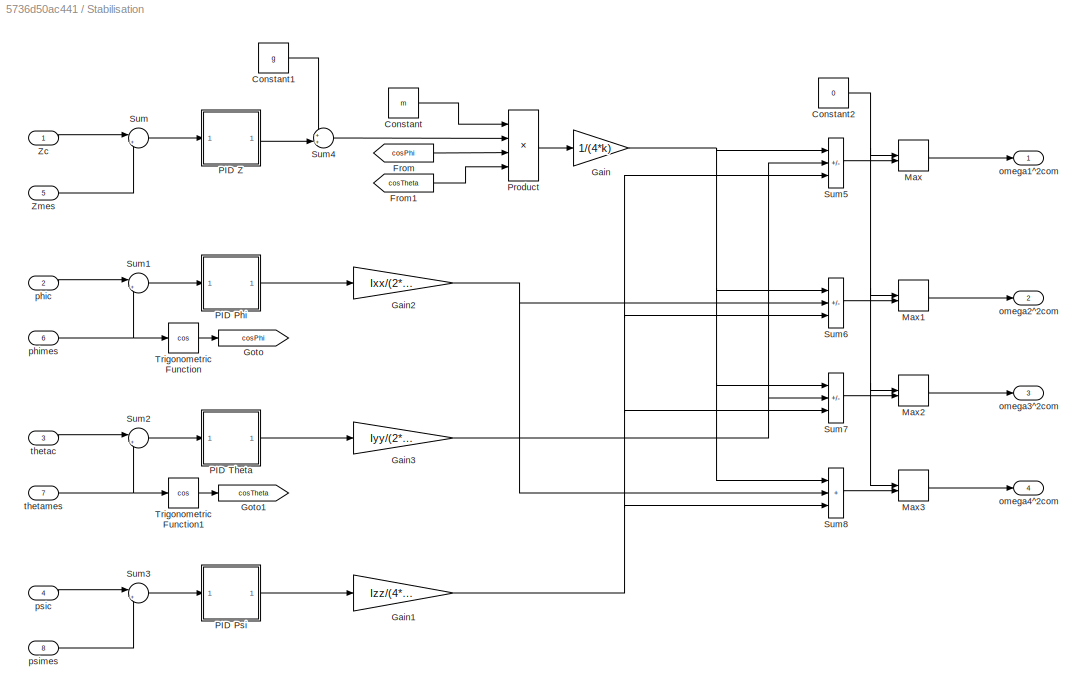
BLOCK [SubSystem] Stabilisation
BLOCK [Constant] Stabilisation/Constant
  Value = m
BLOCK [Constant] Stabilisation/Constant1
  Value = g
BLOCK [Constant] Stabilisation/Constant2
  Value = 0
BLOCK [From] Stabilisation/From
  GotoTag = cosPhi
BLOCK [From] Stabilisation/From1
  GotoTag = cosTheta
BLOCK [Gain] Stabilisation/Gain
  Gain = 1/(4*k)
BLOCK [Gain] Stabilisation/Gain1
  Gain = Izz/(4*b)
BLOCK [Gain] Stabilisation/Gain2
  Gain = Ixx/(2*k*l)
BLOCK [Gain] Stabilisation/Gain3
  Gain = Iyy/(2*k*l)
BLOCK [Goto] Stabilisation/Goto
  GotoTag = cosPhi
BLOCK [Goto] Stabilisation/Goto1
  GotoTag = cosTheta
BLOCK [MinMax] Stabilisation/Max
  Function = max
  Inputs = 2
BLOCK [MinMax] Stabilisation/Max1
  Function = max
  Inputs = 2
BLOCK [MinMax] Stabilisation/Max2
  Function = max
  Inputs = 2
BLOCK [MinMax] Stabilisation/Max3
  Function = max
  Inputs = 2
BLOCK [SubSystem] Stabilisation/PID Phi
BLOCK [Derivative] Stabilisation/PID Phi/Derivative
BLOCK [Gain] Stabilisation/PID Phi/Gain
  Gain = KpPhi
BLOCK [Gain] Stabilisation/PID Phi/Gain1
  Gain = KiPhi
BLOCK [Gain] Stabilisation/PID Phi/Gain2
  Gain = KdPhi
BLOCK [Integrator] Stabilisation/PID Phi/Integrator
BLOCK [Sum] Stabilisation/PID Phi/Sum
  Inputs = +|++
BLOCK [Inport] Stabilisation/PID Phi/e
BLOCK [Outport] Stabilisation/PID Phi/u
BLOCK [SubSystem] Stabilisation/PID Psi
BLOCK [Derivative] Stabilisation/PID Psi/Derivative
BLOCK [Gain] Stabilisation/PID Psi/Gain
  Gain = KpPsi
BLOCK [Gain] Stabilisation/PID Psi/Gain1
  Gain = KiPsi
BLOCK [Gain] Stabilisation/PID Psi/Gain2
  Gain = KdPsi
BLOCK [Integrator] Stabilisation/PID Psi/Integrator
BLOCK [Sum] Stabilisation/PID Psi/Sum
  Inputs = +|++
BLOCK [Inport] Stabilisation/PID Psi/e
BLOCK [Outport] Stabilisation/PID Psi/u
BLOCK [SubSystem] Stabilisation/PID Theta
BLOCK [Derivative] Stabilisation/PID Theta/Derivative
BLOCK [Gain] Stabilisation/PID Theta/Gain
  Gain = KpTheta
BLOCK [Gain] Stabilisation/PID Theta/Gain1
  Gain = KiTheta
BLOCK [Gain] Stabilisation/PID Theta/Gain2
  Gain = KdTheta
BLOCK [Integrator] Stabilisation/PID Theta/Integrator
BLOCK [Sum] Stabilisation/PID Theta/Sum
  Inputs = +|++
BLOCK [Inport] Stabilisation/PID Theta/e
BLOCK [Outport] Stabilisation/PID Theta/u
BLOCK [SubSystem] Stabilisation/PID Z
BLOCK [Derivative] Stabilisation/PID Z/Derivative
BLOCK [Gain] Stabilisation/PID Z/Gain
  Gain = KpZ
BLOCK [Gain] Stabilisation/PID Z/Gain1
  Gain = KiZ
BLOCK [Gain] Stabilisation/PID Z/Gain2
  Gain = KdZ
BLOCK [Integrator] Stabilisation/PID Z/Integrator
BLOCK [Sum] Stabilisation/PID Z/Sum
  Inputs = +|++
BLOCK [Inport] Stabilisation/PID Z/e
BLOCK [Outport] Stabilisation/PID Z/u
BLOCK [Product] Stabilisation/Product
  Inputs = **//
BLOCK [Sum] Stabilisation/Sum
  Inputs = |+-
BLOCK [Sum] Stabilisation/Sum1
  Inputs = |+-
BLOCK [Sum] Stabilisation/Sum2
  Inputs = |+-
BLOCK [Sum] Stabilisation/Sum3
  Inputs = |+-
BLOCK [Sum] Stabilisation/Sum4
  Inputs = ++|
BLOCK [Sum] Stabilisation/Sum5
  IconShape = rectangular
  Inputs = +--
BLOCK [Sum] Stabilisation/Sum6
  IconShape = rectangular
  Inputs = +-+
BLOCK [Sum] Stabilisation/Sum7
  IconShape = rectangular
  Inputs = ++-
BLOCK [Sum] Stabilisation/Sum8
  IconShape = rectangular
  Inputs = +++
BLOCK [Trigonometry] Stabilisation/Trigonometric Function
  Operator = cos
BLOCK [Trigonometry] Stabilisation/Trigonometric Function1
  Operator = cos
BLOCK [Inport] Stabilisation/Zc
BLOCK [Inport] Stabilisation/Zmes
  Port = 5
BLOCK [Outport] Stabilisation/omega1^2com
BLOCK [Outport] Stabilisation/omega2^2com
  Port = 2
BLOCK [Outport] Stabilisation/omega3^2com
  Port = 3
BLOCK [Outport] Stabilisation/omega4^2com
  Port = 4
BLOCK [Inport] Stabilisation/phic
  Port = 2
BLOCK [Inport] Stabilisation/phimes
  Port = 6
BLOCK [Inport] Stabilisation/psic
  Port = 4
BLOCK [Inport] Stabilisation/psimes
  Port = 8
BLOCK [Inport] Stabilisation/thetac
  Port = 3
BLOCK [Inport] Stabilisation/thetames
  Port = 7
BLOCK [SubSystem] Subsystem1
BLOCK [Constant] Subsystem1/Constant
  Value = R
BLOCK [Demux] Subsystem1/Demux4
  Outputs = 3
BLOCK [Product] Subsystem1/Matrix Multiply
  Multiplication = Matrix(*)
BLOCK [Mux] Subsystem1/Mux1
  DisplayOption = bar
  Inputs = 3
BLOCK [Outport] Subsystem1/Psic
  Port = 4
BLOCK [Reference] Subsystem1/Ramp  REF=simulink/Sources/Ramp
  SourceBlock = simulink/Sources/Ramp
  SourceType = Ramp
BLOCK [Reference] Subsystem1/Ramp1  REF=simulink/Sources/Ramp
  SourceBlock = simulink/Sources/Ramp
  SourceType = Ramp
BLOCK [Reference] Subsystem1/Ramp2  REF=simulink/Sources/Ramp
  SourceBlock = simulink/Sources/Ramp
  SourceType = Ramp
BLOCK [Reference] Subsystem1/Ramp3  REF=simulink/Sources/Ramp
  SourceBlock = simulink/Sources/Ramp
  SourceType = Ramp
BLOCK [Reference] Subsystem1/Ramp4  REF=simulink/Sources/Ramp
  SourceBlock = simulink/Sources/Ramp
  SourceType = Ramp
BLOCK [Reference] Subsystem1/Ramp5  REF=simulink/Sources/Ramp
  SourceBlock = simulink/Sources/Ramp
  SourceType = Ramp
BLOCK [Step] Subsystem1/Step
  After = Xc
  SampleTime = 0
  Time = 12
BLOCK [Step] Subsystem1/Step1
  After = Yc
  SampleTime = 0
BLOCK [Step] Subsystem1/Step2
  After = Zc
  SampleTime = 0
  Time = 0
BLOCK [Step] Subsystem1/Step3
  After = Psic
  SampleTime = 0
  Time = 0
BLOCK [Step] Subsystem1/Step4
  After = -Zc
  SampleTime = 0
  Time = 50
BLOCK [Sum] Subsystem1/Sum
  Inputs = |++
BLOCK [Sum] Subsystem1/Sum1
  Inputs = |+-
BLOCK [Sum] Subsystem1/Sum2
  Inputs = |+-
BLOCK [Sum] Subsystem1/Sum3
  Inputs = |-+
BLOCK [Outport] Subsystem1/Xc
BLOCK [Outport] Subsystem1/Yc
  Port = 2
BLOCK [Outport] Subsystem1/Zc
  Port = 3
BLOCK [Sum] Sum1
  Inputs = |+-
  NameLocation = top
BLOCK [Sum] Sum2
  Inputs = |+-
  NameLocation = top
BLOCK [ToWorkspace] To Workspace
  FixptAsFi = on
  MaxDataPoints = inf
  SampleTime = -1
  SaveFormat = Structure With Time
  VariableName = x_drone
BLOCK [ToWorkspace] To Workspace1
  FixptAsFi = on
  MaxDataPoints = inf
  SampleTime = -1
  SaveFormat = Structure With Time
  VariableName = y_drone
BLOCK [ToWorkspace] To Workspace2
  FixptAsFi = on
  MaxDataPoints = inf
  SampleTime = -1
  SaveFormat = Structure With Time
  VariableName = z_drone
BLOCK [ToWorkspace] To Workspace3
  FixptAsFi = on
  MaxDataPoints = inf
  SampleTime = -1
  SaveFormat = Structure With Time
  VariableName = phi_drone
BLOCK [ToWorkspace] To Workspace4
  FixptAsFi = on
  MaxDataPoints = inf
  SampleTime = -1
  SaveFormat = Structure With Time
  VariableName = theta_drone
BLOCK [ToWorkspace] To Workspace5
  FixptAsFi = on
  MaxDataPoints = inf
  SampleTime = -1
  SaveFormat = Structure With Time
  VariableName = psi_drone
BLOCK [ToWorkspace] To Workspace6
  FixptAsFi = on
  MaxDataPoints = inf
  SampleTime = -1
  SaveFormat = Structure With Time
  VariableName = omegacarre1_c
BLOCK [ToWorkspace] To Workspace7
  FixptAsFi = on
  MaxDataPoints = inf
  SampleTime = -1
  SaveFormat = Structure With Time
  VariableName = omegacarre2_c
BLOCK [ToWorkspace] To Workspace8
  FixptAsFi = on
  MaxDataPoints = inf
  SampleTime = -1
  SaveFormat = Structure With Time
  VariableName = omegacarre3_c
BLOCK [ToWorkspace] To Workspace9
  FixptAsFi = on
  MaxDataPoints = inf
  SampleTime = -1
  SaveFormat = Structure With Time
  VariableName = omegacarre4_c
BLOCK [TransferFcn] Transfer Fcn
  Denominator = [1 3]
  NameLocation = top
  Numerator = [3]
BLOCK [TransferFcn] Transfer Fcn1
  Denominator = [1 3]
  NameLocation = top
  Numerator = [3]
BLOCK [Demux] Vx,Vy,VZ
  Outputs = 3
BLOCK [SubSystem] capteurs internes
  NameLocation = top
BLOCK [Outport] capteurs internes/Zmes
BLOCK [Inport] capteurs internes/phi
  Port = 2
BLOCK [Outport] capteurs internes/phimes
  Port = 2
BLOCK [Inport] capteurs internes/psi
  Port = 4
BLOCK [Outport] capteurs internes/psimes
  Port = 4
BLOCK [Inport] capteurs internes/theta
  Port = 3
BLOCK [Outport] capteurs internes/thetames
  Port = 3
BLOCK [Inport] capteurs internes/z
BLOCK [Mux] mux
  DisplayOption = bar
  Inputs = 3
BLOCK [Mux] mux1
  DisplayOption = bar
  Inputs = 3
BLOCK [Demux] x,y,z
  Outputs = 3
ANNOTATION (root): Asservissement trajectoire
ANNOTATION (root): Consigne en mode automatique
ANNOTATION (root): Drone stabilisé
ANNOTATION (root): Mouvement du drone
ANNOTATION (root): Retour du capteur imparfait
ANNOTATION (root): Transformation VLTR
ANNOTATION Quadrirotor/R: Matrice de rotation du repère du drone vers le repère inertiel
ANNOTATION Quadrirotor/W: Matrice de transformation des vitesses angulaires depuis le repère inertiel vers le repère du drone
LINE Ax,Ay,Az:1 -> Scope6:1
LINE Ax,Ay,Az:2 -> Scope6:2
LINE Ax,Ay,Az:3 -> Scope6:3
LINE Capteurs externes/Bias1:1 -> Capteurs externes/Transport Delay1:1
NET Capteurs externes/Bias:1 -> Capteurs externes/Scope9:1, Capteurs externes/Sum3:2, Capteurs externes/Transport Delay:1
NET Capteurs externes/Random Number1:1 -> Capteurs externes/Scope1:1, Capteurs externes/Sum2:1
NET Capteurs externes/Random Number:1 -> Capteurs externes/Scope3:1, Capteurs externes/Sum1:1
NET Capteurs externes/Sum1:1 -> Capteurs externes/Bias:1, Capteurs externes/Sum3:1
LINE Capteurs externes/Sum2:1 -> Capteurs externes/Bias1:1
LINE Capteurs externes/Sum3:1 -> Capteurs externes/Scope10:1
NET Capteurs externes/Transport Delay1:1 -> Capteurs externes/Scope2:1, Capteurs externes/Ymesuré:1
NET Capteurs externes/Transport Delay:1 -> Capteurs externes/Scope4:1, Capteurs externes/Xmesuré:1
NET Capteurs externes/x:1 -> Capteurs externes/Scope6:1, Capteurs externes/Sum1:2
NET Capteurs externes/y:1 -> Capteurs externes/Scope5:1, Capteurs externes/Sum2:2
NET Capteurs externes:1 -> Controle trajectoire1:3, Messure de l'écart:3, Scope:1, Scope:2, Sum2:1, Sum2:2
NET Capteurs externes:2 -> Controle trajectoire1:4, Messure de l'écart:4, Scope2:1, Scope2:2, Sum1:1, Sum1:2
LINE Constant1:1 -> Matrix Multiply1:1
LINE Constant2:1 -> Matrix Multiply2:1
LINE Constant4:1 -> Matrix Multiply:1
LINE Controle trajectoire1/Formule/Add1:1 -> Controle trajectoire1/Formule/Gain:1
LINE Controle trajectoire1/Formule/Derivative:1 -> Controle trajectoire1/Formule/Sum:3
LINE Controle trajectoire1/Formule/Gain1:1 -> Controle trajectoire1/Formule/Sum:1
LINE Controle trajectoire1/Formule/Gain2:1 -> Controle trajectoire1/Formule/Derivative:1
LINE Controle trajectoire1/Formule/Gain:1 -> Controle trajectoire1/Formule/Sum:2
LINE Controle trajectoire1/Formule/Sum:1 -> Controle trajectoire1/Formule/LCU:1
NET Controle trajectoire1/Formule/U:1 -> Controle trajectoire1/Formule/Add1:2, Controle trajectoire1/Formule/Gain2:1
NET Controle trajectoire1/Formule/Uc:1 -> Controle trajectoire1/Formule/Add1:1, Controle trajectoire1/Formule/Gain1:1
LINE Controle trajectoire1/Formule2/Add1:1 -> Controle trajectoire1/Formule2/Gain:1
LINE Controle trajectoire1/Formule2/Derivative:1 -> Controle trajectoire1/Formule2/Sum:3
LINE Controle trajectoire1/Formule2/Gain1:1 -> Controle trajectoire1/Formule2/Sum:1
LINE Controle trajectoire1/Formule2/Gain2:1 -> Controle trajectoire1/Formule2/Derivative:1
LINE Controle trajectoire1/Formule2/Gain:1 -> Controle trajectoire1/Formule2/Sum:2
LINE Controle trajectoire1/Formule2/Product:1 -> Controle trajectoire1/Formule2/LCV:1
LINE Controle trajectoire1/Formule2/Sum:1 -> Controle trajectoire1/Formule2/Product:1
LINE Controle trajectoire1/Formule2/Trigonometric Function1:1 -> Controle trajectoire1/Formule2/Product:2
NET Controle trajectoire1/Formule2/V:1 -> Controle trajectoire1/Formule2/Add1:2, Controle trajectoire1/Formule2/Gain2:1
NET Controle trajectoire1/Formule2/Vc:1 -> Controle trajectoire1/Formule2/Add1:1, Controle trajectoire1/Formule2/Gain1:1
LINE Controle trajectoire1/Formule2/thetac:1 -> Controle trajectoire1/Formule2/Trigonometric Function1:1
LINE Controle trajectoire1/Formule2:1 -> Controle trajectoire1/Trigonometric Function:1
LINE Controle trajectoire1/Formule:1 -> Controle trajectoire1/Trigonometric Function1:1
LINE Controle trajectoire1/Gain1:1 -> Controle trajectoire1/Phic:1
NET Controle trajectoire1/Psic:1 -> Controle trajectoire1/U:3, Controle trajectoire1/Uc:3, Controle trajectoire1/V:3, Controle trajectoire1/Vc:3
NET Controle trajectoire1/Trigonometric Function1:1 -> Controle trajectoire1/Formule2:3, Controle trajectoire1/Thetac:1
LINE Controle trajectoire1/Trigonometric Function:1 -> Controle trajectoire1/Gain1:1
LINE Controle trajectoire1/U/Add:1 -> Controle trajectoire1/U/U:1
LINE Controle trajectoire1/U/Derivative1:1 -> Controle trajectoire1/U/Product1:2
LINE Controle trajectoire1/U/Derivative:1 -> Controle trajectoire1/U/Product:1
LINE Controle trajectoire1/U/Product1:1 -> Controle trajectoire1/U/Add:2
LINE Controle trajectoire1/U/Product:1 -> Controle trajectoire1/U/Add:1
NET Controle trajectoire1/U/Psic:1 -> Controle trajectoire1/U/Trigonometric Function1:1, Controle trajectoire1/U/Trigonometric Function:1
LINE Controle trajectoire1/U/Trigonometric Function1:1 -> Controle trajectoire1/U/Product:2
LINE Controle trajectoire1/U/Trigonometric Function:1 -> Controle trajectoire1/U/Product1:1
LINE Controle trajectoire1/U/Xmes:1 -> Controle trajectoire1/U/Derivative:1
LINE Controle trajectoire1/U/Ymes:1 -> Controle trajectoire1/U/Derivative1:1
LINE Controle trajectoire1/U:1 -> Controle trajectoire1/Formule:1
LINE Controle trajectoire1/Uc/Add:1 -> Controle trajectoire1/Uc/Uc:1
LINE Controle trajectoire1/Uc/Product1:1 -> Controle trajectoire1/Uc/Add:2
LINE Controle trajectoire1/Uc/Product:1 -> Controle trajectoire1/Uc/Add:1
NET Controle trajectoire1/Uc/Psic:1 -> Controle trajectoire1/Uc/Trigonometric Function1:1, Controle trajectoire1/Uc/Trigonometric Function:1
LINE Controle trajectoire1/Uc/Trigonometric Function1:1 -> Controle trajectoire1/Uc/Product:2
LINE Controle trajectoire1/Uc/Trigonometric Function:1 -> Controle trajectoire1/Uc/Product1:1
NET Controle trajectoire1/Uc/Xcorrigé:1 -> Controle trajectoire1/Uc/Product:1, Controle trajectoire1/Uc/Scope:1
LINE Controle trajectoire1/Uc/Ycorrigé:1 -> Controle trajectoire1/Uc/Product1:2
LINE Controle trajectoire1/Uc:1 -> Controle trajectoire1/Formule:2
LINE Controle trajectoire1/V/Add:1 -> Controle trajectoire1/V/V:1
LINE Controle trajectoire1/V/Derivative1:1 -> Controle trajectoire1/V/Product1:2
LINE Controle trajectoire1/V/Derivative:1 -> Controle trajectoire1/V/Product:1
LINE Controle trajectoire1/V/Product1:1 -> Controle trajectoire1/V/Add:2
LINE Controle trajectoire1/V/Product:1 -> Controle trajectoire1/V/Add:1
NET Controle trajectoire1/V/Psic:1 -> Controle trajectoire1/V/Trigonometric Function1:1, Controle trajectoire1/V/Trigonometric Function:1
LINE Controle trajectoire1/V/Trigonometric Function1:1 -> Controle trajectoire1/V/Product:2
LINE Controle trajectoire1/V/Trigonometric Function:1 -> Controle trajectoire1/V/Product1:1
LINE Controle trajectoire1/V/Xmes:1 -> Controle trajectoire1/V/Derivative:1
LINE Controle trajectoire1/V/Ymes:1 -> Controle trajectoire1/V/Derivative1:1
LINE Controle trajectoire1/V:1 -> Controle trajectoire1/Formule2:1
LINE Controle trajectoire1/Vc/Add:1 -> Controle trajectoire1/Vc/Vc:1
LINE Controle trajectoire1/Vc/Product1:1 -> Controle trajectoire1/Vc/Add:2
LINE Controle trajectoire1/Vc/Product:1 -> Controle trajectoire1/Vc/Add:1
NET Controle trajectoire1/Vc/Psic:1 -> Controle trajectoire1/Vc/Trigonometric Function1:1, Controle trajectoire1/Vc/Trigonometric Function:1
LINE Controle trajectoire1/Vc/Trigonometric Function1:1 -> Controle trajectoire1/Vc/Product:2
LINE Controle trajectoire1/Vc/Trigonometric Function:1 -> Controle trajectoire1/Vc/Product1:1
LINE Controle trajectoire1/Vc/Xcorrigé:1 -> Controle trajectoire1/Vc/Product:1
LINE Controle trajectoire1/Vc/Ycorrigé:1 -> Controle trajectoire1/Vc/Product1:2
LINE Controle trajectoire1/Vc:1 -> Controle trajectoire1/Formule2:2
NET Controle trajectoire1/Xecart:1 -> Controle trajectoire1/Scope4:2, Controle trajectoire1/Uc:1, Controle trajectoire1/Vc:1
NET Controle trajectoire1/Xmes:1 -> Controle trajectoire1/Scope4:1, Controle trajectoire1/U:1, Controle trajectoire1/V:1
NET Controle trajectoire1/Yecart:1 -> Controle trajectoire1/Uc:2, Controle trajectoire1/Vc:2
NET Controle trajectoire1/Ymes:1 -> Controle trajectoire1/U:2, Controle trajectoire1/V:2
LINE Controle trajectoire1:1 -> Signaux VLTR1 inverse:2
LINE Controle trajectoire1:2 -> Signaux VLTR1 inverse:3
NET Matrix Multiply1:1 -> Scope7:2, Vx,Vy,VZ:1
NET Matrix Multiply2:1 -> Ax,Ay,Az:1, Scope7:3
NET Matrix Multiply:1 -> Scope7:1, x,y,z:1
LINE Messure de l'écart/Sum4:1 -> Messure de l'écart/Ycorrigé:1
NET Messure de l'écart/Sum5:1 -> Messure de l'écart/Scope1:1, Messure de l'écart/Scope:1, Messure de l'écart/Xcorrigé:1
NET Messure de l'écart/Xc:1 -> Messure de l'écart/Scope2:1, Messure de l'écart/Sum5:1
NET Messure de l'écart/Xmesuré:1 -> Messure de l'écart/Scope3:1, Messure de l'écart/Sum5:2
LINE Messure de l'écart/Yc:1 -> Messure de l'écart/Sum4:1
LINE Messure de l'écart/Ymesuré:1 -> Messure de l'écart/Sum4:2
LINE Messure de l'écart:1 -> Controle trajectoire1:1
LINE Messure de l'écart:2 -> Controle trajectoire1:2
LINE Mux:1 -> Matrix Multiply:2
LINE Quadrirotor/Add1:1 -> Quadrirotor/Gain:1
LINE Quadrirotor/Add2:1 -> Quadrirotor/Gain1:1
LINE Quadrirotor/Add3:1 -> Quadrirotor/Gain2:1
LINE Quadrirotor/Add4:1 -> Quadrirotor/Mux3:3
LINE Quadrirotor/Add:1 -> Quadrirotor/Gain4:1
NET Quadrirotor/Constant1:1 -> Quadrirotor/Mux2:1, Quadrirotor/Mux2:2
LINE Quadrirotor/Constant2:1 -> Quadrirotor/Mux2:3
NET Quadrirotor/Constant3:1 -> Quadrirotor/Mux3:1, Quadrirotor/Mux3:2
NET Quadrirotor/Constant:1 -> Quadrirotor/Mux1:1, Quadrirotor/Mux1:2
LINE Quadrirotor/Cross Product1:1 -> Quadrirotor/Sum:2
LINE Quadrirotor/Cross Product:1 -> Quadrirotor/Sum:1
LINE Quadrirotor/Demux1:1 -> Quadrirotor/p:1
LINE Quadrirotor/Demux1:2 -> Quadrirotor/q:1
LINE Quadrirotor/Demux1:3 -> Quadrirotor/r:1
LINE Quadrirotor/Demux2:1 -> Quadrirotor/x:1
LINE Quadrirotor/Demux2:2 -> Quadrirotor/y:1
LINE Quadrirotor/Demux2:3 -> Quadrirotor/z:1
LINE Quadrirotor/Demux3:1 -> Quadrirotor/Vx:1
LINE Quadrirotor/Demux3:2 -> Quadrirotor/Vy:1
LINE Quadrirotor/Demux3:3 -> Quadrirotor/Vz:1
LINE Quadrirotor/Demux4:1 -> Quadrirotor/Ax:1
LINE Quadrirotor/Demux4:2 -> Quadrirotor/Ay:1
LINE Quadrirotor/Demux4:3 -> Quadrirotor/Az:1
NET Quadrirotor/Demux:1 -> Quadrirotor/R:1, Quadrirotor/W:1, Quadrirotor/phi:1
NET Quadrirotor/Demux:2 -> Quadrirotor/R:2, Quadrirotor/W:2, Quadrirotor/theta:1
NET Quadrirotor/Demux:3 -> Quadrirotor/R:3, Quadrirotor/psi:1
LINE Quadrirotor/Gain1:1 -> Quadrirotor/Mux:2
LINE Quadrirotor/Gain2:1 -> Quadrirotor/Mux:3
LINE Quadrirotor/Gain3:1 -> Quadrirotor/Sum2:1
NET Quadrirotor/Gain4:1 -> Quadrirotor/Mux1:3, Quadrirotor/Scope:1
LINE Quadrirotor/Gain5:1 -> Quadrirotor/Cross Product1:2
LINE Quadrirotor/Gain:1 -> Quadrirotor/Mux:1
NET Quadrirotor/Integrator1:1 -> Quadrirotor/Cross Product1:1, Quadrirotor/Cross Product:1, Quadrirotor/Demux1:1, Quadrirotor/Product1:2, Quadrirotor/Product:2
LINE Quadrirotor/Integrator2:1 -> Quadrirotor/Demux2:1
NET Quadrirotor/Integrator3:1 -> Quadrirotor/Demux3:1, Quadrirotor/Integrator2:1, Quadrirotor/Product4:2
LINE Quadrirotor/Integrator:1 -> Quadrirotor/Demux:1
LINE Quadrirotor/Inverse matrice d'inertie:1 -> Quadrirotor/Product2:1
LINE Quadrirotor/Matrice d'inertie1:1 -> Quadrirotor/Product4:1
LINE Quadrirotor/Matrice d'inertie:1 -> Quadrirotor/Product1:1
LINE Quadrirotor/Mux1:1 -> Quadrirotor/Reshape1:1
LINE Quadrirotor/Mux2:1 -> Quadrirotor/Reshape2:1
LINE Quadrirotor/Mux3:1 -> Quadrirotor/Reshape3:1
LINE Quadrirotor/Mux:1 -> Quadrirotor/Reshape:1
LINE Quadrirotor/Product1:1 -> Quadrirotor/Cross Product:2
LINE Quadrirotor/Product2:1 -> Quadrirotor/Integrator1:1
LINE Quadrirotor/Product3:1 -> Quadrirotor/Sum1:2
LINE Quadrirotor/Product4:1 -> Quadrirotor/Sum1:1
LINE Quadrirotor/Product:1 -> Quadrirotor/Integrator:1
LINE Quadrirotor/R/Matrix Multiply:1 -> Quadrirotor/R/R:1
NET Quadrirotor/R/RotationX/Constant1:1 -> Quadrirotor/R/RotationX/Mux1:1, Quadrirotor/R/RotationX/Mux2:1, Quadrirotor/R/RotationX/Mux:2, Quadrirotor/R/RotationX/Mux:3
LINE Quadrirotor/R/RotationX/Constant:1 -> Quadrirotor/R/RotationX/Mux:1
NET Quadrirotor/R/RotationX/Cos:1 -> Quadrirotor/R/RotationX/Mux1:2, Quadrirotor/R/RotationX/Mux2:3
LINE Quadrirotor/R/RotationX/Gain:1 -> Quadrirotor/R/RotationX/Mux2:2
LINE Quadrirotor/R/RotationX/Matrix Concatenate:1 -> Quadrirotor/R/RotationX/Rx:1
LINE Quadrirotor/R/RotationX/Mux1:1 -> Quadrirotor/R/RotationX/Reshape1:1
LINE Quadrirotor/R/RotationX/Mux2:1 -> Quadrirotor/R/RotationX/Reshape2:1
LINE Quadrirotor/R/RotationX/Mux:1 -> Quadrirotor/R/RotationX/Reshape:1
LINE Quadrirotor/R/RotationX/Reshape1:1 -> Quadrirotor/R/RotationX/Matrix Concatenate:2
LINE Quadrirotor/R/RotationX/Reshape2:1 -> Quadrirotor/R/RotationX/Matrix Concatenate:3
LINE Quadrirotor/R/RotationX/Reshape:1 -> Quadrirotor/R/RotationX/Matrix Concatenate:1
NET Quadrirotor/R/RotationX/Trigonometric Function:1 -> Quadrirotor/R/RotationX/Gain:1, Quadrirotor/R/RotationX/Mux1:3
NET Quadrirotor/R/RotationX/angle:1 -> Quadrirotor/R/RotationX/Cos:1, Quadrirotor/R/RotationX/Trigonometric Function:1
LINE Quadrirotor/R/RotationX:1 -> Quadrirotor/R/Matrix Multiply:3
NET Quadrirotor/R/RotationY/Constant1:1 -> Quadrirotor/R/RotationY/Mux1:2, Quadrirotor/R/RotationY/Mux2:2, Quadrirotor/R/RotationY/Mux:1, Quadrirotor/R/RotationY/Mux:3
LINE Quadrirotor/R/RotationY/Constant:1 -> Quadrirotor/R/RotationY/Mux:2
NET Quadrirotor/R/RotationY/Cos:1 -> Quadrirotor/R/RotationY/Mux1:1, Quadrirotor/R/RotationY/Mux2:3
LINE Quadrirotor/R/RotationY/Gain:1 -> Quadrirotor/R/RotationY/Mux1:3
LINE Quadrirotor/R/RotationY/Matrix Concatenate:1 -> Quadrirotor/R/RotationY/Ry:1
LINE Quadrirotor/R/RotationY/Mux1:1 -> Quadrirotor/R/RotationY/Reshape1:1
LINE Quadrirotor/R/RotationY/Mux2:1 -> Quadrirotor/R/RotationY/Reshape2:1
LINE Quadrirotor/R/RotationY/Mux:1 -> Quadrirotor/R/RotationY/Reshape:1
LINE Quadrirotor/R/RotationY/Reshape1:1 -> Quadrirotor/R/RotationY/Matrix Concatenate:1
LINE Quadrirotor/R/RotationY/Reshape2:1 -> Quadrirotor/R/RotationY/Matrix Concatenate:3
LINE Quadrirotor/R/RotationY/Reshape:1 -> Quadrirotor/R/RotationY/Matrix Concatenate:2
NET Quadrirotor/R/RotationY/Trigonometric Function:1 -> Quadrirotor/R/RotationY/Gain:1, Quadrirotor/R/RotationY/Mux2:1
NET Quadrirotor/R/RotationY/angle:1 -> Quadrirotor/R/RotationY/Cos:1, Quadrirotor/R/RotationY/Trigonometric Function:1
LINE Quadrirotor/R/RotationY:1 -> Quadrirotor/R/Matrix Multiply:2
NET Quadrirotor/R/RotationZ/Constant1:1 -> Quadrirotor/R/RotationZ/Mux1:3, Quadrirotor/R/RotationZ/Mux2:3, Quadrirotor/R/RotationZ/Mux:1, Quadrirotor/R/RotationZ/Mux:2
LINE Quadrirotor/R/RotationZ/Constant:1 -> Quadrirotor/R/RotationZ/Mux:3
NET Quadrirotor/R/RotationZ/Cos:1 -> Quadrirotor/R/RotationZ/Mux1:1, Quadrirotor/R/RotationZ/Mux2:2
LINE Quadrirotor/R/RotationZ/Gain:1 -> Quadrirotor/R/RotationZ/Mux2:1
LINE Quadrirotor/R/RotationZ/Matrix Concatenate:1 -> Quadrirotor/R/RotationZ/Rz:1
LINE Quadrirotor/R/RotationZ/Mux1:1 -> Quadrirotor/R/RotationZ/Reshape1:1
LINE Quadrirotor/R/RotationZ/Mux2:1 -> Quadrirotor/R/RotationZ/Reshape2:1
LINE Quadrirotor/R/RotationZ/Mux:1 -> Quadrirotor/R/RotationZ/Reshape:1
LINE Quadrirotor/R/RotationZ/Reshape1:1 -> Quadrirotor/R/RotationZ/Matrix Concatenate:1
LINE Quadrirotor/R/RotationZ/Reshape2:1 -> Quadrirotor/R/RotationZ/Matrix Concatenate:2
LINE Quadrirotor/R/RotationZ/Reshape:1 -> Quadrirotor/R/RotationZ/Matrix Concatenate:3
NET Quadrirotor/R/RotationZ/Trigonometric Function:1 -> Quadrirotor/R/RotationZ/Gain:1, Quadrirotor/R/RotationZ/Mux1:2
NET Quadrirotor/R/RotationZ/angle:1 -> Quadrirotor/R/RotationZ/Cos:1, Quadrirotor/R/RotationZ/Trigonometric Function:1
LINE Quadrirotor/R/RotationZ:1 -> Quadrirotor/R/Matrix Multiply:1
LINE Quadrirotor/R/phi:1 -> Quadrirotor/R/RotationX:1
LINE Quadrirotor/R/psi:1 -> Quadrirotor/R/RotationZ:1
LINE Quadrirotor/R/theta:1 -> Quadrirotor/R/RotationY:1
LINE Quadrirotor/R:1 -> Quadrirotor/Product3:1
LINE Quadrirotor/Reshape1:1 -> Quadrirotor/Product3:2
LINE Quadrirotor/Reshape2:1 -> Quadrirotor/Sum2:2
LINE Quadrirotor/Reshape3:1 -> Quadrirotor/Gain5:1
LINE Quadrirotor/Reshape:1 -> Quadrirotor/Sum:3
LINE Quadrirotor/Sqrt1:1 -> Quadrirotor/Add4:2
LINE Quadrirotor/Sqrt2:1 -> Quadrirotor/Add4:3
LINE Quadrirotor/Sqrt3:1 -> Quadrirotor/Add4:4
LINE Quadrirotor/Sqrt:1 -> Quadrirotor/Add4:1
LINE Quadrirotor/Sum1:1 -> Quadrirotor/Gain3:1
NET Quadrirotor/Sum2:1 -> Quadrirotor/Demux4:1, Quadrirotor/Integrator3:1
LINE Quadrirotor/Sum:1 -> Quadrirotor/Product2:2
LINE Quadrirotor/Transpose:1 -> Quadrirotor/Product:1
NET Quadrirotor/W/Constant1:1 -> Quadrirotor/W/Mux2:1, Quadrirotor/W/Mux:2, Quadrirotor/W/Mux:3
LINE Quadrirotor/W/Constant:1 -> Quadrirotor/W/Mux:1
NET Quadrirotor/W/Cos1:1 -> Quadrirotor/W/Product1:1, Quadrirotor/W/Product:1
NET Quadrirotor/W/Cos:1 -> Quadrirotor/W/Mux2:2, Quadrirotor/W/Product1:2
LINE Quadrirotor/W/Gain1:1 -> Quadrirotor/W/Mux1:1
LINE Quadrirotor/W/Gain:1 -> Quadrirotor/W/Mux2:3
LINE Quadrirotor/W/Matrix Concatenate:1 -> Quadrirotor/W/W:1
LINE Quadrirotor/W/Mux1:1 -> Quadrirotor/W/Reshape2:1
LINE Quadrirotor/W/Mux2:1 -> Quadrirotor/W/Reshape1:1
LINE Quadrirotor/W/Mux:1 -> Quadrirotor/W/Reshape:1
LINE Quadrirotor/W/Product1:1 -> Quadrirotor/W/Mux1:3
LINE Quadrirotor/W/Product:1 -> Quadrirotor/W/Mux1:2
LINE Quadrirotor/W/Reshape1:1 -> Quadrirotor/W/Matrix Concatenate:2
LINE Quadrirotor/W/Reshape2:1 -> Quadrirotor/W/Matrix Concatenate:3
LINE Quadrirotor/W/Reshape:1 -> Quadrirotor/W/Matrix Concatenate:1
LINE Quadrirotor/W/Trigonometric Function1:1 -> Quadrirotor/W/Gain1:1
NET Quadrirotor/W/Trigonometric Function:1 -> Quadrirotor/W/Gain:1, Quadrirotor/W/Product:2
NET Quadrirotor/W/phi:1 -> Quadrirotor/W/Cos:1, Quadrirotor/W/Trigonometric Function:1
NET Quadrirotor/W/theta:1 -> Quadrirotor/W/Cos1:1, Quadrirotor/W/Trigonometric Function1:1
LINE Quadrirotor/W:1 -> Quadrirotor/Transpose:1
NET Quadrirotor/omegaCarre1:1 -> Quadrirotor/Add2:1, Quadrirotor/Add3:1, Quadrirotor/Add:1, Quadrirotor/Sqrt:1
NET Quadrirotor/omegaCarre2:1 -> Quadrirotor/Add1:1, Quadrirotor/Add3:2, Quadrirotor/Add:2, Quadrirotor/Sqrt1:1
NET Quadrirotor/omegaCarre3:1 -> Quadrirotor/Add2:2, Quadrirotor/Add3:3, Quadrirotor/Add:3, Quadrirotor/Sqrt2:1
NET Quadrirotor/omegaCarre4:1 -> Quadrirotor/Add1:2, Quadrirotor/Add3:4, Quadrirotor/Add:4, Quadrirotor/Sqrt3:1
NET Quadrirotor:1 -> Capteurs externes:1, Mux:1
LINE Quadrirotor:10 -> mux1:1
LINE Quadrirotor:11 -> mux1:2
LINE Quadrirotor:12 -> mux1:3
NET Quadrirotor:2 -> Capteurs externes:2, Mux:2
NET Quadrirotor:3 -> Mux:3, capteurs internes:1
NET Quadrirotor:4 -> To Workspace3:1, capteurs internes:2
NET Quadrirotor:5 -> To Workspace4:1, capteurs internes:3
NET Quadrirotor:6 -> To Workspace5:1, capteurs internes:4
LINE Quadrirotor:7 -> mux:1
LINE Quadrirotor:8 -> mux:2
LINE Quadrirotor:9 -> mux:3
NET Saturation1:1 -> Quadrirotor:2, To Workspace7:1
NET Saturation2:1 -> Quadrirotor:3, To Workspace8:1
NET Saturation3:1 -> Quadrirotor:4, To Workspace9:1
NET Saturation:1 -> Quadrirotor:1, To Workspace6:1
LINE Signaux VLTR/Constant3:1 -> Signaux VLTR/Sum1:2
LINE Signaux VLTR/Constant4:1 -> Signaux VLTR/Sum2:2
LINE Signaux VLTR/Constant5:1 -> Signaux VLTR/Sum3:2
LINE Signaux VLTR/Gain1:1 -> Signaux VLTR/Phic:1
LINE Signaux VLTR/Gain3:1 -> Signaux VLTR/Sum1:1
LINE Signaux VLTR/Gain4:1 -> Signaux VLTR/Sum2:1
LINE Signaux VLTR/Gain5:1 -> Signaux VLTR/Sum3:1
LINE Signaux VLTR/Gain6:1 -> Signaux VLTR/Psic:1
LINE Signaux VLTR/Gain:1 -> Signaux VLTR/Thetac:1
LINE Signaux VLTR/Phi:1 -> Signaux VLTR/Gain3:1
LINE Signaux VLTR/Psi:1 -> Signaux VLTR/Gain5:1
LINE Signaux VLTR/Sum1:1 -> Signaux VLTR/Gain1:1
LINE Signaux VLTR/Sum2:1 -> Signaux VLTR/Gain:1
LINE Signaux VLTR/Sum3:1 -> Signaux VLTR/Gain6:1
LINE Signaux VLTR/Theta:1 -> Signaux VLTR/Gain4:1
LINE Signaux VLTR/V:1 -> Signaux VLTR/Zc:1
LINE Signaux VLTR1 inverse/Constant1:1 -> Signaux VLTR1 inverse/Sum4:2
LINE Signaux VLTR1 inverse/Constant2:1 -> Signaux VLTR1 inverse/Sum5:2
LINE Signaux VLTR1 inverse/Constant3:1 -> Signaux VLTR1 inverse/Sum1:2
LINE Signaux VLTR1 inverse/Gain1:1 -> Signaux VLTR1 inverse/Sum1:1
LINE Signaux VLTR1 inverse/Gain2:1 -> Signaux VLTR1 inverse/Sum4:1
LINE Signaux VLTR1 inverse/Gain3:1 -> Signaux VLTR1 inverse/Psi:1
LINE Signaux VLTR1 inverse/Gain7:1 -> Signaux VLTR1 inverse/Phi:1
LINE Signaux VLTR1 inverse/Gain8:1 -> Signaux VLTR1 inverse/Sum5:1
LINE Signaux VLTR1 inverse/Gain9:1 -> Signaux VLTR1 inverse/Theta:1
LINE Signaux VLTR1 inverse/Phi1:1 -> Signaux VLTR1 inverse/Gain2:1
LINE Signaux VLTR1 inverse/Psi1:1 -> Signaux VLTR1 inverse/Gain1:1
LINE Signaux VLTR1 inverse/Sum1:1 -> Signaux VLTR1 inverse/Gain3:1
LINE Signaux VLTR1 inverse/Sum4:1 -> Signaux VLTR1 inverse/Gain7:1
LINE Signaux VLTR1 inverse/Sum5:1 -> Signaux VLTR1 inverse/Gain9:1
LINE Signaux VLTR1 inverse/Theta1:1 -> Signaux VLTR1 inverse/Gain8:1
LINE Signaux VLTR1 inverse/Zc:1 -> Signaux VLTR1 inverse/V:1
LINE Signaux VLTR1 inverse:1 -> Signaux VLTR:1
LINE Signaux VLTR1 inverse:2 -> Signaux VLTR:2
LINE Signaux VLTR1 inverse:3 -> Signaux VLTR:3
LINE Signaux VLTR1 inverse:4 -> Signaux VLTR:4
LINE Signaux VLTR:1 -> Stabilisation:1
LINE Signaux VLTR:2 -> Stabilisation:2
LINE Signaux VLTR:3 -> Stabilisation:3
LINE Signaux VLTR:4 -> Stabilisation:4
LINE Stabilisation/Constant1:1 -> Stabilisation/Sum4:1
NET Stabilisation/Constant2:1 -> Stabilisation/Max1:1, Stabilisation/Max2:1, Stabilisation/Max3:1, Stabilisation/Max:1
LINE Stabilisation/Constant:1 -> Stabilisation/Product:1
LINE Stabilisation/From1:1 -> Stabilisation/Product:4
LINE Stabilisation/From:1 -> Stabilisation/Product:3
NET Stabilisation/Gain1:1 -> Stabilisation/Sum5:3, Stabilisation/Sum6:3, Stabilisation/Sum7:3, Stabilisation/Sum8:3
NET Stabilisation/Gain2:1 -> Stabilisation/Sum6:2, Stabilisation/Sum8:2
NET Stabilisation/Gain3:1 -> Stabilisation/Sum5:2, Stabilisation/Sum7:2
NET Stabilisation/Gain:1 -> Stabilisation/Sum5:1, Stabilisation/Sum6:1, Stabilisation/Sum7:1, Stabilisation/Sum8:1
LINE Stabilisation/Max1:1 -> Stabilisation/omega2^2com:1
LINE Stabilisation/Max2:1 -> Stabilisation/omega3^2com:1
LINE Stabilisation/Max3:1 -> Stabilisation/omega4^2com:1
LINE Stabilisation/Max:1 -> Stabilisation/omega1^2com:1
LINE Stabilisation/PID Phi/Derivative:1 -> Stabilisation/PID Phi/Sum:3
LINE Stabilisation/PID Phi/Gain1:1 -> Stabilisation/PID Phi/Integrator:1
LINE Stabilisation/PID Phi/Gain2:1 -> Stabilisation/PID Phi/Derivative:1
LINE Stabilisation/PID Phi/Gain:1 -> Stabilisation/PID Phi/Sum:2
LINE Stabilisation/PID Phi/Integrator:1 -> Stabilisation/PID Phi/Sum:1
LINE Stabilisation/PID Phi/Sum:1 -> Stabilisation/PID Phi/u:1
NET Stabilisation/PID Phi/e:1 -> Stabilisation/PID Phi/Gain1:1, Stabilisation/PID Phi/Gain2:1, Stabilisation/PID Phi/Gain:1
LINE Stabilisation/PID Phi:1 -> Stabilisation/Gain2:1
LINE Stabilisation/PID Psi/Derivative:1 -> Stabilisation/PID Psi/Sum:3
LINE Stabilisation/PID Psi/Gain1:1 -> Stabilisation/PID Psi/Integrator:1
LINE Stabilisation/PID Psi/Gain2:1 -> Stabilisation/PID Psi/Derivative:1
LINE Stabilisation/PID Psi/Gain:1 -> Stabilisation/PID Psi/Sum:2
LINE Stabilisation/PID Psi/Integrator:1 -> Stabilisation/PID Psi/Sum:1
LINE Stabilisation/PID Psi/Sum:1 -> Stabilisation/PID Psi/u:1
NET Stabilisation/PID Psi/e:1 -> Stabilisation/PID Psi/Gain1:1, Stabilisation/PID Psi/Gain2:1, Stabilisation/PID Psi/Gain:1
LINE Stabilisation/PID Psi:1 -> Stabilisation/Gain1:1
LINE Stabilisation/PID Theta/Derivative:1 -> Stabilisation/PID Theta/Sum:3
LINE Stabilisation/PID Theta/Gain1:1 -> Stabilisation/PID Theta/Integrator:1
LINE Stabilisation/PID Theta/Gain2:1 -> Stabilisation/PID Theta/Derivative:1
LINE Stabilisation/PID Theta/Gain:1 -> Stabilisation/PID Theta/Sum:2
LINE Stabilisation/PID Theta/Integrator:1 -> Stabilisation/PID Theta/Sum:1
LINE Stabilisation/PID Theta/Sum:1 -> Stabilisation/PID Theta/u:1
NET Stabilisation/PID Theta/e:1 -> Stabilisation/PID Theta/Gain1:1, Stabilisation/PID Theta/Gain2:1, Stabilisation/PID Theta/Gain:1
LINE Stabilisation/PID Theta:1 -> Stabilisation/Gain3:1
LINE Stabilisation/PID Z/Derivative:1 -> Stabilisation/PID Z/Sum:3
LINE Stabilisation/PID Z/Gain1:1 -> Stabilisation/PID Z/Integrator:1
LINE Stabilisation/PID Z/Gain2:1 -> Stabilisation/PID Z/Derivative:1
LINE Stabilisation/PID Z/Gain:1 -> Stabilisation/PID Z/Sum:2
LINE Stabilisation/PID Z/Integrator:1 -> Stabilisation/PID Z/Sum:1
LINE Stabilisation/PID Z/Sum:1 -> Stabilisation/PID Z/u:1
NET Stabilisation/PID Z/e:1 -> Stabilisation/PID Z/Gain1:1, Stabilisation/PID Z/Gain2:1, Stabilisation/PID Z/Gain:1
LINE Stabilisation/PID Z:1 -> Stabilisation/Sum4:2
LINE Stabilisation/Product:1 -> Stabilisation/Gain:1
LINE Stabilisation/Sum1:1 -> Stabilisation/PID Phi:1
LINE Stabilisation/Sum2:1 -> Stabilisation/PID Theta:1
LINE Stabilisation/Sum3:1 -> Stabilisation/PID Psi:1
LINE Stabilisation/Sum4:1 -> Stabilisation/Product:2
LINE Stabilisation/Sum5:1 -> Stabilisation/Max:2
LINE Stabilisation/Sum6:1 -> Stabilisation/Max1:2
LINE Stabilisation/Sum7:1 -> Stabilisation/Max2:2
LINE Stabilisation/Sum8:1 -> Stabilisation/Max3:2
LINE Stabilisation/Sum:1 -> Stabilisation/PID Z:1
LINE Stabilisation/Trigonometric Function1:1 -> Stabilisation/Goto1:1
LINE Stabilisation/Trigonometric Function:1 -> Stabilisation/Goto:1
LINE Stabilisation/Zc:1 -> Stabilisation/Sum:1
LINE Stabilisation/Zmes:1 -> Stabilisation/Sum:2
LINE Stabilisation/phic:1 -> Stabilisation/Sum1:1
NET Stabilisation/phimes:1 -> Stabilisation/Sum1:2, Stabilisation/Trigonometric Function:1
LINE Stabilisation/psic:1 -> Stabilisation/Sum3:1
LINE Stabilisation/psimes:1 -> Stabilisation/Sum3:2
LINE Stabilisation/thetac:1 -> Stabilisation/Sum2:1
NET Stabilisation/thetames:1 -> Stabilisation/Sum2:2, Stabilisation/Trigonometric Function1:1
LINE Stabilisation:1 -> Saturation:1
LINE Stabilisation:2 -> Saturation1:1
LINE Stabilisation:3 -> Saturation2:1
LINE Stabilisation:4 -> Saturation3:1
LINE Subsystem1/Constant:1 -> Subsystem1/Matrix Multiply:1
LINE Subsystem1/Demux4:1 -> Subsystem1/Xc:1
LINE Subsystem1/Demux4:2 -> Subsystem1/Yc:1
LINE Subsystem1/Demux4:3 -> Subsystem1/Zc:1
LINE Subsystem1/Matrix Multiply:1 -> Subsystem1/Demux4:1
LINE Subsystem1/Mux1:1 -> Subsystem1/Matrix Multiply:2
LINE Subsystem1/Ramp1:1 -> Subsystem1/Sum1:2
LINE Subsystem1/Ramp2:1 -> Subsystem1/Sum2:1
LINE Subsystem1/Ramp3:1 -> Subsystem1/Sum2:2
LINE Subsystem1/Ramp4:1 -> Subsystem1/Sum3:1
LINE Subsystem1/Ramp5:1 -> Subsystem1/Sum3:2
LINE Subsystem1/Ramp:1 -> Subsystem1/Sum1:1
LINE Subsystem1/Step1:1 -> Subsystem1/Mux1:2
LINE Subsystem1/Step3:1 -> Subsystem1/Psic:1
LINE Subsystem1/Sum1:1 -> Subsystem1/Mux1:1
LINE Subsystem1/Sum2:1 -> Subsystem1/Sum:1
LINE Subsystem1/Sum3:1 -> Subsystem1/Sum:2
LINE Subsystem1/Sum:1 -> Subsystem1/Mux1:3
LINE Subsystem1:1 -> Messure de l'écart:1
LINE Subsystem1:2 -> Messure de l'écart:2
LINE Subsystem1:3 -> Signaux VLTR1 inverse:1
NET Subsystem1:4 -> Controle trajectoire1:5, Signaux VLTR1 inverse:4
LINE Sum1:1 -> Scope5:1
LINE Sum2:1 -> Scope3:1
LINE Vx,Vy,VZ:1 -> Scope4:1
LINE Vx,Vy,VZ:2 -> Scope4:2
LINE Vx,Vy,VZ:3 -> Scope4:3
LINE capteurs internes/phi:1 -> capteurs internes/phimes:1
LINE capteurs internes/psi:1 -> capteurs internes/psimes:1
LINE capteurs internes/theta:1 -> capteurs internes/thetames:1
LINE capteurs internes/z:1 -> capteurs internes/Zmes:1
LINE capteurs internes:1 -> Stabilisation:5
LINE capteurs internes:2 -> Stabilisation:6
LINE capteurs internes:3 -> Stabilisation:7
LINE capteurs internes:4 -> Stabilisation:8
LINE mux1:1 -> Matrix Multiply2:2
LINE mux:1 -> Matrix Multiply1:2
NET x,y,z:1 -> Scope1:1, To Workspace:1
NET x,y,z:2 -> Scope1:2, To Workspace1:1
NET x,y,z:3 -> Scope1:3, To Workspace2:1
note: NET lines group one-source signal fan-out (src -> all destinations, sorted); 1:1 wires keep LINE
